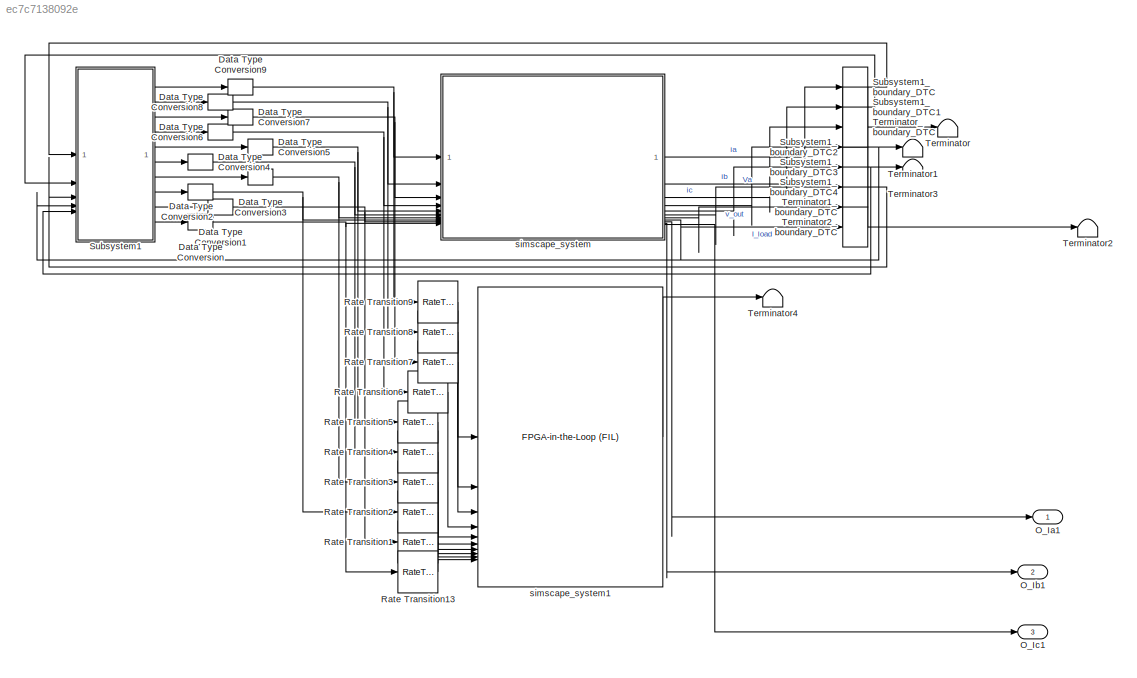
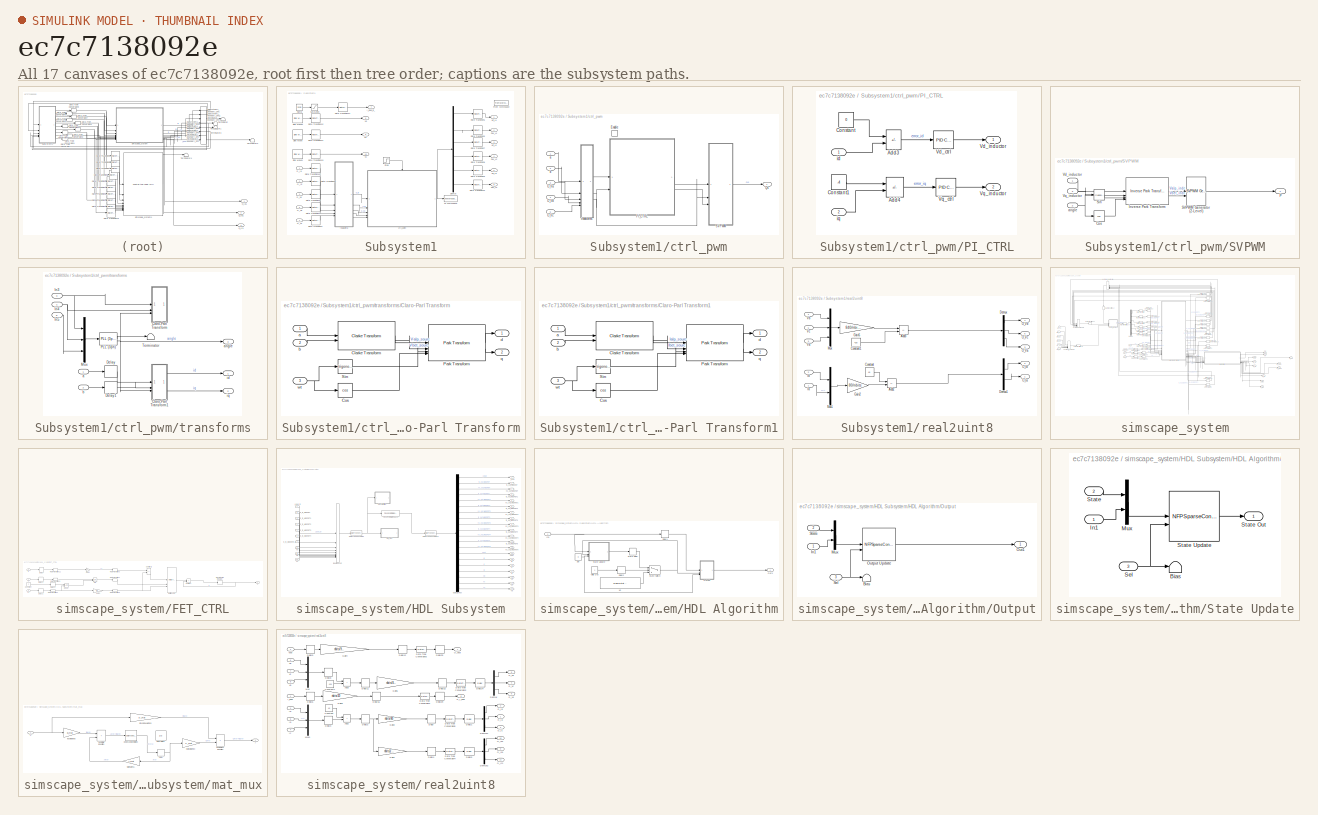
[diagram: thumbnail index - all 17 canvases of the model, root first then tree order]
MODEL slx_ec7c7138092e
KIND model
CONFIG AbsTol = auto
CONFIG EnableMultiTasking = off
CONFIG FixedStep = auto
CONFIG InitFcn = fidelity_pfc_vals;\nload('<userpath>\Desktop\hil\pfc3ph\matlab\sim\sschdl\pfc_desktop\stateSpaceParameters.mat');\nnbits=(2^12)-2;\nnbits1=(2^11)-2;\nA_mat = fi(stateSpaceParameters_1.Ad,1,25,24);\nB_mat = fi(stateSpaceParameters_1.Bd,1,25,31);\nC_mat = fi(stateSpaceParameters_1.Cd,1,25,20);\nD_mat = fi(stateSpaceParameters_1.Dd,1,25,19);\nX0_mat= fi(stateSpaceParameters_1.X0,1,25,14);\n
CONFIG MaxStep = auto
CONFIG MinStep = auto
CONFIG RelTol = 1e-3
CONFIG SampleTimeConstraint = Unconstrained
CONFIG SolverName = VariableStepAuto
CONFIG StartTime = 0.0
CONFIG StopTime = 10.0
BLOCK [DataTypeConversion] Data Type Conversion
  OutDataTypeStr = fixdt(1,18,8)
  RndMeth = Floor
  SaturateOnIntegerOverflow = off
BLOCK [DataTypeConversion] Data Type Conversion1
  OutDataTypeStr = fixdt(1,18,8)
  RndMeth = Floor
  SaturateOnIntegerOverflow = off
BLOCK [DataTypeConversion] Data Type Conversion2
  OutDataTypeStr = fixdt(1,18,8)
  RndMeth = Floor
  SaturateOnIntegerOverflow = off
BLOCK [DataTypeConversion] Data Type Conversion3
  OutDataTypeStr = fixdt(1,18,8)
  RndMeth = Floor
  SaturateOnIntegerOverflow = off
BLOCK [DataTypeConversion] Data Type Conversion4
  OutDataTypeStr = boolean
  RndMeth = Floor
  SaturateOnIntegerOverflow = off
BLOCK [DataTypeConversion] Data Type Conversion5
  OutDataTypeStr = boolean
  RndMeth = Floor
  SaturateOnIntegerOverflow = off
BLOCK [DataTypeConversion] Data Type Conversion6
  OutDataTypeStr = boolean
  RndMeth = Floor
  SaturateOnIntegerOverflow = off
BLOCK [DataTypeConversion] Data Type Conversion7
  OutDataTypeStr = boolean
  RndMeth = Floor
  SaturateOnIntegerOverflow = off
BLOCK [DataTypeConversion] Data Type Conversion8
  OutDataTypeStr = boolean
  RndMeth = Floor
  SaturateOnIntegerOverflow = off
BLOCK [DataTypeConversion] Data Type Conversion9
  OutDataTypeStr = boolean
  RndMeth = Floor
  SaturateOnIntegerOverflow = off
BLOCK [Outport] O_Ia1
BLOCK [Outport] O_Ib1
  Port = 2
BLOCK [Outport] O_Ic1
  Port = 3
BLOCK [RateTransition] Rate Transition1
BLOCK [RateTransition] Rate Transition13
BLOCK [RateTransition] Rate Transition2
BLOCK [RateTransition] Rate Transition3
BLOCK [RateTransition] Rate Transition4
BLOCK [RateTransition] Rate Transition5
BLOCK [RateTransition] Rate Transition6
BLOCK [RateTransition] Rate Transition7
BLOCK [RateTransition] Rate Transition8
BLOCK [RateTransition] Rate Transition9
BLOCK [SubSystem] Subsystem1
BLOCK [Outport] Subsystem1/DW_L1
  Port = 2
BLOCK [Outport] Subsystem1/DW_L2
  Port = 4
BLOCK [Outport] Subsystem1/DW_L3
  Port = 6
BLOCK [Demux] Subsystem1/Demux
  Outputs = 6
BLOCK [FromWorkspace] Subsystem1/From Workspace
  Commented = on
  Interpolate = off
  OutputAfterFinalValue = Holding final value
  SampleTime = t_ss
  VariableName = pwm
  ZeroCross = off
BLOCK [Outport] Subsystem1/I_load_in_
  Port = 7
BLOCK [Inport] Subsystem1/O_Ia
BLOCK [Inport] Subsystem1/O_Ib
  Port = 2
BLOCK [Inport] Subsystem1/O_Va
  Port = 3
BLOCK [Inport] Subsystem1/O_Vb
  Port = 5
BLOCK [Inport] Subsystem1/O_Vc
  Port = 4
BLOCK [Reference] Subsystem1/Ramp  REF=simulink/Sources/Ramp
  SourceBlock = simulink/Sources/Ramp
  SourceType = Ramp
BLOCK [RateTransition] Subsystem1/Rate Transition1
BLOCK [RateTransition] Subsystem1/Rate Transition10
BLOCK [RateTransition] Subsystem1/Rate Transition11
BLOCK [RateTransition] Subsystem1/Rate Transition12
BLOCK [RateTransition] Subsystem1/Rate Transition13
BLOCK [RateTransition] Subsystem1/Rate Transition14
  OutPortSampleTime = t_ss
BLOCK [RateTransition] Subsystem1/Rate Transition15
BLOCK [RateTransition] Subsystem1/Rate Transition2
BLOCK [RateTransition] Subsystem1/Rate Transition3
BLOCK [RateTransition] Subsystem1/Rate Transition4
BLOCK [RateTransition] Subsystem1/Rate Transition5
BLOCK [RateTransition] Subsystem1/Rate Transition6
BLOCK [RateTransition] Subsystem1/Rate Transition7
BLOCK [RateTransition] Subsystem1/Rate Transition8
BLOCK [RateTransition] Subsystem1/Rate Transition9
BLOCK [Saturate] Subsystem1/Saturation
  Commented = on
  UpperLimit = 2
BLOCK [Reference] Subsystem1/Sine Wave  REF=dspsrcs4/Sine Wave
  LibrarySourceBlock = dsphdlsupportsrcs/Sine Wave
  SourceBlock = dspsrcs4/Sine Wave
  SourceType = Sine Wave
BLOCK [Reference] Subsystem1/Sine Wave1  REF=dspsrcs4/Sine Wave
  LibrarySourceBlock = dsphdlsupportsrcs/Sine Wave
  SourceBlock = dspsrcs4/Sine Wave
  SourceType = Sine Wave
BLOCK [Reference] Subsystem1/Sine Wave2  REF=dspsrcs4/Sine Wave
  LibrarySourceBlock = dsphdlsupportsrcs/Sine Wave
  SourceBlock = dspsrcs4/Sine Wave
  SourceType = Sine Wave
BLOCK [Step] Subsystem1/Step
  Commented = on
  SampleTime = 0
  Time = 2/50
BLOCK [ToWorkspace] Subsystem1/To Workspace
  Commented = on
  FixptAsFi = on
  MaxDataPoints = inf
  SampleTime = -1
  SaveFormat = Timeseries
  VariableName = pwm
BLOCK [Outport] Subsystem1/UP_L1
BLOCK [Outport] Subsystem1/UP_L2
  Port = 3
BLOCK [Outport] Subsystem1/UP_L3
  Port = 5
BLOCK [SubSystem] Subsystem1/ctrl_pwm
BLOCK [EnablePort] Subsystem1/ctrl_pwm/Enable
BLOCK [Inport] Subsystem1/ctrl_pwm/O_Va
  Port = 3
BLOCK [Inport] Subsystem1/ctrl_pwm/O_Vb
  Port = 4
BLOCK [Inport] Subsystem1/ctrl_pwm/O_Vc
  Port = 5
BLOCK [SubSystem] Subsystem1/ctrl_pwm/PI_CTRL
BLOCK [Sum] Subsystem1/ctrl_pwm/PI_CTRL/Add3
  IconShape = rectangular
  Inputs = +-
BLOCK [Sum] Subsystem1/ctrl_pwm/PI_CTRL/Add4
  IconShape = rectangular
  Inputs = +-
BLOCK [Constant] Subsystem1/ctrl_pwm/PI_CTRL/Constant
  SampleTime = t_ss
  Value = 0
BLOCK [Constant] Subsystem1/ctrl_pwm/PI_CTRL/Constant1
  SampleTime = t_ss
  Value = -4
BLOCK [Reference] Subsystem1/ctrl_pwm/PI_CTRL/Vd_ctrl  REF=slpidlib/PID Controller
  SourceBlock = slpidlib/PID Controller
  SourceType = PID 1dof
BLOCK [Outport] Subsystem1/ctrl_pwm/PI_CTRL/Vd_inductor
BLOCK [Reference] Subsystem1/ctrl_pwm/PI_CTRL/Vq_ctrl  REF=slpidlib/PID Controller
  SourceBlock = slpidlib/PID Controller
  SourceType = PID 1dof
BLOCK [Outport] Subsystem1/ctrl_pwm/PI_CTRL/Vq_inductor
  Port = 2
BLOCK [Inport] Subsystem1/ctrl_pwm/PI_CTRL/id
BLOCK [Inport] Subsystem1/ctrl_pwm/PI_CTRL/iq
  Port = 2
BLOCK [Outport] Subsystem1/ctrl_pwm/Qs
BLOCK [SubSystem] Subsystem1/ctrl_pwm/SVPWM
BLOCK [Trigonometry] Subsystem1/ctrl_pwm/SVPWM/Cos
  Operator = cos
BLOCK [Reference] Subsystem1/ctrl_pwm/SVPWM/Inverse Park Transform  REF=mcbcontrolslib/Inverse Park Transform
  SourceBlock = mcbcontrolslib/Inverse Park Transform
  SourceType = Inverse Park Transform
BLOCK [Outport] Subsystem1/ctrl_pwm/SVPWM/P
BLOCK [Reference] Subsystem1/ctrl_pwm/SVPWM/SVPWM Generator (2-Level)  REF=spsSVPWMGenerator2LevelLib/SVPWM Generator
(2-Level)
  SourceBlock = spsSVPWMGenerator2LevelLib/SVPWM Generator\n(2-Level)
  SourceType = SVPWM Generator (2-Level)
BLOCK [Trigonometry] Subsystem1/ctrl_pwm/SVPWM/Sin
BLOCK [Inport] Subsystem1/ctrl_pwm/SVPWM/Vd_inductor
BLOCK [Inport] Subsystem1/ctrl_pwm/SVPWM/Vq_inductor
  Port = 3
BLOCK [Inport] Subsystem1/ctrl_pwm/SVPWM/angle
  Port = 2
BLOCK [Inport] Subsystem1/ctrl_pwm/a
BLOCK [Inport] Subsystem1/ctrl_pwm/b
  Port = 2
BLOCK [SubSystem] Subsystem1/ctrl_pwm/transforms
BLOCK [SubSystem] Subsystem1/ctrl_pwm/transforms/Claro-Parl Transform
  Commented = on
BLOCK [Reference] Subsystem1/ctrl_pwm/transforms/Claro-Parl Transform/Clarke Transform  REF=mcbcontrolslib/Clarke Transform
  SourceBlock = mcbcontrolslib/Clarke Transform
  SourceType = Clarke Transform
BLOCK [Trigonometry] Subsystem1/ctrl_pwm/transforms/Claro-Parl Transform/Cos
  Operator = cos
BLOCK [Reference] Subsystem1/ctrl_pwm/transforms/Claro-Parl Transform/Park Transform  REF=mcbcontrolslib/Park Transform
  SourceBlock = mcbcontrolslib/Park Transform
  SourceType = Park Transform
BLOCK [Trigonometry] Subsystem1/ctrl_pwm/transforms/Claro-Parl Transform/Sin
BLOCK [Inport] Subsystem1/ctrl_pwm/transforms/Claro-Parl Transform/a
BLOCK [Inport] Subsystem1/ctrl_pwm/transforms/Claro-Parl Transform/b
  Port = 2
BLOCK [Outport] Subsystem1/ctrl_pwm/transforms/Claro-Parl Transform/d
BLOCK [Outport] Subsystem1/ctrl_pwm/transforms/Claro-Parl Transform/q
  Port = 2
BLOCK [Inport] Subsystem1/ctrl_pwm/transforms/Claro-Parl Transform/wt
  Port = 3
BLOCK [SubSystem] Subsystem1/ctrl_pwm/transforms/Claro-Parl Transform1
BLOCK [Reference] Subsystem1/ctrl_pwm/transforms/Claro-Parl Transform1/Clarke Transform  REF=mcbcontrolslib/Clarke Transform
  SourceBlock = mcbcontrolslib/Clarke Transform
  SourceType = Clarke Transform
BLOCK [Trigonometry] Subsystem1/ctrl_pwm/transforms/Claro-Parl Transform1/Cos
  Operator = cos
BLOCK [Reference] Subsystem1/ctrl_pwm/transforms/Claro-Parl Transform1/Park Transform  REF=mcbcontrolslib/Park Transform
  SourceBlock = mcbcontrolslib/Park Transform
  SourceType = Park Transform
BLOCK [Trigonometry] Subsystem1/ctrl_pwm/transforms/Claro-Parl Transform1/Sin
BLOCK [Inport] Subsystem1/ctrl_pwm/transforms/Claro-Parl Transform1/a
BLOCK [Inport] Subsystem1/ctrl_pwm/transforms/Claro-Parl Transform1/b
  Port = 2
BLOCK [Outport] Subsystem1/ctrl_pwm/transforms/Claro-Parl Transform1/d
BLOCK [Outport] Subsystem1/ctrl_pwm/transforms/Claro-Parl Transform1/q
  Port = 2
BLOCK [Inport] Subsystem1/ctrl_pwm/transforms/Claro-Parl Transform1/wt
  Port = 3
BLOCK [Delay] Subsystem1/ctrl_pwm/transforms/Delay
  DelayLength = 1
  InputPortMap = u0
BLOCK [Delay] Subsystem1/ctrl_pwm/transforms/Delay1
  DelayLength = 1
  InputPortMap = u0
BLOCK [Inport] Subsystem1/ctrl_pwm/transforms/In3
  Port = 3
BLOCK [Inport] Subsystem1/ctrl_pwm/transforms/In4
  Port = 4
BLOCK [Inport] Subsystem1/ctrl_pwm/transforms/In5
  Port = 5
BLOCK [Mux] Subsystem1/ctrl_pwm/transforms/Mux
  DisplayOption = bar
  Inputs = 3
BLOCK [Reference] Subsystem1/ctrl_pwm/transforms/PLL (3ph)  REF=spsPLL3phLib/PLL
(3ph)
  SourceBlock = spsPLL3phLib/PLL\n(3ph)
  SourceType = PLL (3ph)
BLOCK [Terminator] Subsystem1/ctrl_pwm/transforms/Terminator
BLOCK [Inport] Subsystem1/ctrl_pwm/transforms/a
BLOCK [Outport] Subsystem1/ctrl_pwm/transforms/angle
  Port = 3
BLOCK [Inport] Subsystem1/ctrl_pwm/transforms/b
  Port = 2
BLOCK [Outport] Subsystem1/ctrl_pwm/transforms/id
BLOCK [Outport] Subsystem1/ctrl_pwm/transforms/iq
  Port = 2
BLOCK [SubSystem] Subsystem1/real2uint8
BLOCK [Sum] Subsystem1/real2uint8/Add2
  IconShape = rectangular
  Inputs = -+
  OutDataTypeStr = Inherit: Same as first input
BLOCK [Sum] Subsystem1/real2uint8/Add3
  IconShape = rectangular
  Inputs = +-
BLOCK [Constant] Subsystem1/real2uint8/Constant
  SampleTime = -1
  Value = 40
BLOCK [Constant] Subsystem1/real2uint8/Constant1
  SampleTime = -1
  Value = 420
BLOCK [Demux] Subsystem1/real2uint8/Demux
  Outputs = 3
BLOCK [Demux] Subsystem1/real2uint8/Demux1
  Outputs = 2
BLOCK [Gain] Subsystem1/real2uint8/Gain2
  Gain = 80/nbits
  OutDataTypeStr = Inherit: Same as input
BLOCK [Gain] Subsystem1/real2uint8/Gain5
  Gain = 840/nbits
  OutDataTypeStr = Inherit: Same as input
BLOCK [Inport] Subsystem1/real2uint8/Ia
BLOCK [Inport] Subsystem1/real2uint8/Ib
  Port = 2
BLOCK [Mux] Subsystem1/real2uint8/Mux
  DisplayOption = bar
  Inputs = 3
BLOCK [Mux] Subsystem1/real2uint8/Mux1
  DisplayOption = bar
  Inputs = 2
BLOCK [Outport] Subsystem1/real2uint8/O_Ia
BLOCK [Outport] Subsystem1/real2uint8/O_Ib
  Port = 2
BLOCK [Outport] Subsystem1/real2uint8/O_Va
  Port = 3
BLOCK [Outport] Subsystem1/real2uint8/O_Vb
  Port = 4
BLOCK [Outport] Subsystem1/real2uint8/O_Vc
  Port = 5
BLOCK [Inport] Subsystem1/real2uint8/Va
  Port = 3
BLOCK [Inport] Subsystem1/real2uint8/Vb
  Port = 4
BLOCK [Inport] Subsystem1/real2uint8/Vc
  Port = 5
BLOCK [Outport] Subsystem1/va
  Port = 8
BLOCK [Outport] Subsystem1/vb
  Port = 9
BLOCK [Outport] Subsystem1/vc
  Port = 10
BLOCK [DataTypeConversion] Subsystem1_boundary_DTC
BLOCK [DataTypeConversion] Subsystem1_boundary_DTC1
BLOCK [DataTypeConversion] Subsystem1_boundary_DTC2
BLOCK [DataTypeConversion] Subsystem1_boundary_DTC3
BLOCK [DataTypeConversion] Subsystem1_boundary_DTC4
BLOCK [Terminator] Terminator
BLOCK [Terminator] Terminator1
BLOCK [DataTypeConversion] Terminator1_boundary_DTC
BLOCK [Terminator] Terminator2
BLOCK [DataTypeConversion] Terminator2_boundary_DTC
BLOCK [Terminator] Terminator3
BLOCK [Terminator] Terminator4
BLOCK [DataTypeConversion] Terminator_boundary_DTC
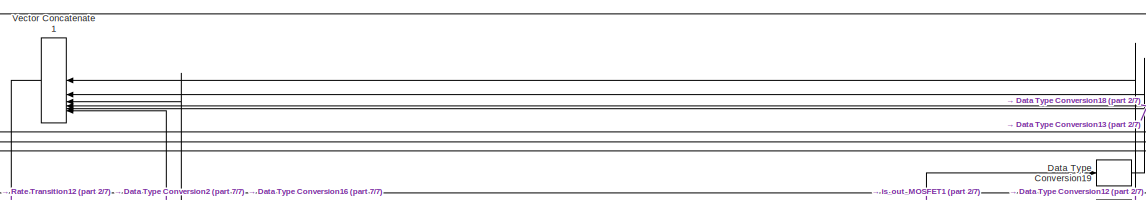
[diagram: simscape_system - part 1/7, top center region]
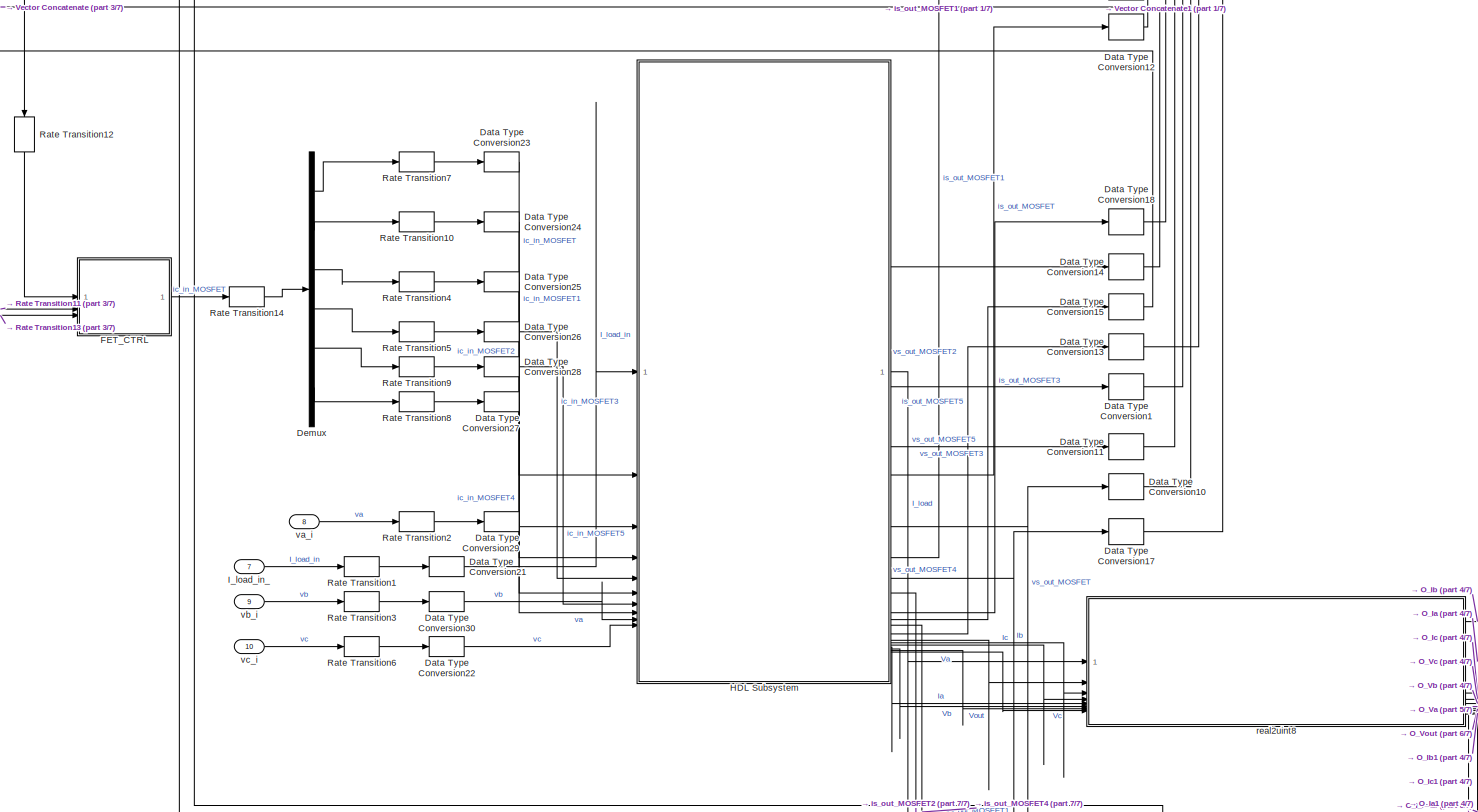
[diagram: simscape_system - part 2/7, central region]
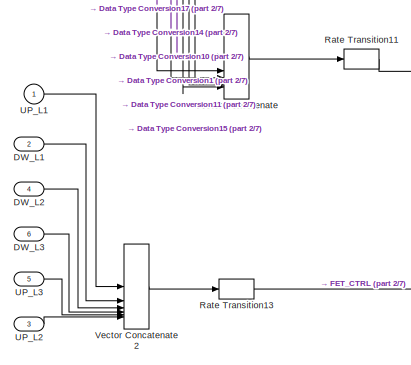
[diagram: simscape_system - part 3/7, middle left region]
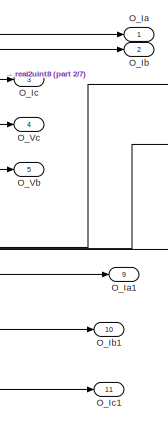
[diagram: simscape_system - part 4/7, middle right region]
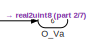
[diagram: simscape_system - part 5/7, middle right region]
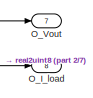
[diagram: simscape_system - part 6/7, middle right region]
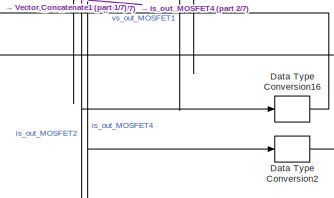
[diagram: simscape_system - part 7/7, bottom center region]
BLOCK [SubSystem] simscape_system
BLOCK [Inport] simscape_system/DW_L1
  Port = 2
BLOCK [Inport] simscape_system/DW_L2
  Port = 4
BLOCK [Inport] simscape_system/DW_L3
  Port = 6
BLOCK [DataTypeConversion] simscape_system/Data Type Conversion1
  Commented = through
  LockScale = on
  RndMeth = Nearest
  SaturateOnIntegerOverflow = off
BLOCK [DataTypeConversion] simscape_system/Data Type Conversion10
  Commented = through
  LockScale = on
  RndMeth = Nearest
  SaturateOnIntegerOverflow = off
BLOCK [DataTypeConversion] simscape_system/Data Type Conversion11
  Commented = through
  LockScale = on
  RndMeth = Nearest
  SaturateOnIntegerOverflow = off
BLOCK [DataTypeConversion] simscape_system/Data Type Conversion12
  Commented = through
  LockScale = on
  RndMeth = Nearest
  SaturateOnIntegerOverflow = off
BLOCK [DataTypeConversion] simscape_system/Data Type Conversion13
  Commented = through
  LockScale = on
  RndMeth = Nearest
  SaturateOnIntegerOverflow = off
BLOCK [DataTypeConversion] simscape_system/Data Type Conversion14
  Commented = through
  LockScale = on
  RndMeth = Nearest
  SaturateOnIntegerOverflow = off
BLOCK [DataTypeConversion] simscape_system/Data Type Conversion15
  Commented = through
  LockScale = on
  RndMeth = Nearest
  SaturateOnIntegerOverflow = off
BLOCK [DataTypeConversion] simscape_system/Data Type Conversion16
  Commented = through
  LockScale = on
  RndMeth = Nearest
  SaturateOnIntegerOverflow = off
BLOCK [DataTypeConversion] simscape_system/Data Type Conversion17
  Commented = through
  LockScale = on
  RndMeth = Nearest
  SaturateOnIntegerOverflow = off
BLOCK [DataTypeConversion] simscape_system/Data Type Conversion18
  Commented = through
  LockScale = on
  RndMeth = Nearest
  SaturateOnIntegerOverflow = off
BLOCK [DataTypeConversion] simscape_system/Data Type Conversion19
  Commented = through
  LockScale = on
  RndMeth = Nearest
  SaturateOnIntegerOverflow = off
BLOCK [DataTypeConversion] simscape_system/Data Type Conversion2
  Commented = through
  LockScale = on
  RndMeth = Nearest
  SaturateOnIntegerOverflow = off
BLOCK [DataTypeConversion] simscape_system/Data Type Conversion21
  Commented = through
  OutDataTypeStr = single
  RndMeth = Nearest
  SaturateOnIntegerOverflow = off
BLOCK [DataTypeConversion] simscape_system/Data Type Conversion22
  Commented = through
  OutDataTypeStr = single
  RndMeth = Nearest
  SaturateOnIntegerOverflow = off
BLOCK [DataTypeConversion] simscape_system/Data Type Conversion23
  Commented = through
  OutDataTypeStr = single
  RndMeth = Nearest
  SaturateOnIntegerOverflow = off
BLOCK [DataTypeConversion] simscape_system/Data Type Conversion24
  Commented = through
  OutDataTypeStr = single
  RndMeth = Nearest
  SaturateOnIntegerOverflow = off
BLOCK [DataTypeConversion] simscape_system/Data Type Conversion25
  Commented = through
  OutDataTypeStr = single
  RndMeth = Nearest
  SaturateOnIntegerOverflow = off
BLOCK [DataTypeConversion] simscape_system/Data Type Conversion26
  Commented = through
  OutDataTypeStr = single
  RndMeth = Nearest
  SaturateOnIntegerOverflow = off
BLOCK [DataTypeConversion] simscape_system/Data Type Conversion27
  Commented = through
  OutDataTypeStr = single
  RndMeth = Nearest
  SaturateOnIntegerOverflow = off
BLOCK [DataTypeConversion] simscape_system/Data Type Conversion28
  Commented = through
  OutDataTypeStr = single
  RndMeth = Nearest
  SaturateOnIntegerOverflow = off
BLOCK [DataTypeConversion] simscape_system/Data Type Conversion29
  Commented = through
  OutDataTypeStr = single
  RndMeth = Nearest
  SaturateOnIntegerOverflow = off
BLOCK [DataTypeConversion] simscape_system/Data Type Conversion30
  Commented = through
  OutDataTypeStr = single
  RndMeth = Nearest
  SaturateOnIntegerOverflow = off
BLOCK [Demux] simscape_system/Demux
  Outputs = 6
BLOCK [SubSystem] simscape_system/FET_CTRL
BLOCK [Constant] simscape_system/FET_CTRL/Constant
  OutDataTypeStr = fixdt(1,18,17)
  SampleTime = t_ss
  Value = -.7
BLOCK [Delay] simscape_system/FET_CTRL/Delay
  Commented = through
  DelayLength = 1
  InputPortMap = u0
  InputProcessing = Columns as channels (frame based)
  SampleTime = t_ss
BLOCK [Delay] simscape_system/FET_CTRL/Delay1
  Commented = through
  DelayLength = 1
  InputPortMap = u0
  InputProcessing = Columns as channels (frame based)
  SampleTime = t_ss
BLOCK [Delay] simscape_system/FET_CTRL/Delay2
  Commented = through
  DelayLength = 1
  InputPortMap = u0
  InputProcessing = Columns as channels (frame based)
  SampleTime = t_ss
BLOCK [Delay] simscape_system/FET_CTRL/Delay3
  Commented = through
  DelayLength = 1
  InitialCondition = -.7
  InputPortMap = u0
  InputProcessing = Columns as channels (frame based)
  SampleTime = t_ss
BLOCK [DiscreteIntegrator] simscape_system/FET_CTRL/Discrete-Time Integrator
  ICPrevOutput = DiscIntNeverNeededParam
  ICPrevScaledInput = DiscIntNeverNeededParam
  InitialConditionSetting = Auto
  IntegratorMethod = Accumulation: Forward Euler
  LimitOutput = on
  LowerSaturationLimit = -100
  OutDataTypeStr = fixdt(1,18,8)
  SampleTime = t_ss
  SaturateOnIntegerOverflow = on
  UpperSaturationLimit = 100
  gainval = 1/s
BLOCK [RelationalOperator] simscape_system/FET_CTRL/Equal
  InputSameDT = off
  OutDataTypeStr = boolean
  RndMeth = Simplest
BLOCK [Inport] simscape_system/FET_CTRL/G
  Port = 3
  SampleTime = t_ss
BLOCK [Gain] simscape_system/FET_CTRL/Gain1
  Gain = -1
  OutDataTypeStr = fixdt(1,18,12)
BLOCK [Gain] simscape_system/FET_CTRL/Gain3
  Gain = Gs
  OutDataTypeStr = fixdt(1,18,12)
BLOCK [Reference] simscape_system/FET_CTRL/Multiply-Add  REF=hdlsllib/HDL Operations/Multiply-Add
  SourceBlock = hdlsllib/HDL Operations/Multiply-Add
  SourceType = Multiply-Add
BLOCK [Logic] simscape_system/FET_CTRL/OR
  AllPortsSameDT = off
  IconShape = distinctive
  Operator = OR
  OutDataTypeStr = boolean
BLOCK [RateTransition] simscape_system/FET_CTRL/Rate Transition1
  Commented = through
  OutPortSampleTime = t_ss
BLOCK [RateTransition] simscape_system/FET_CTRL/Rate Transition11
  Commented = through
  OutPortSampleTime = t_ss
BLOCK [RateTransition] simscape_system/FET_CTRL/Rate Transition2
  Commented = through
  OutPortSampleTime = t_ss
BLOCK [RateTransition] simscape_system/FET_CTRL/Rate Transition3
  Commented = through
  OutPortSampleTime = t_ss
BLOCK [RateTransition] simscape_system/FET_CTRL/Rate Transition4
  Commented = through
  OutPortSampleTime = t_ss
BLOCK [RateTransition] simscape_system/FET_CTRL/Rate Transition5
  Commented = through
  OutPortSampleTime = t_ss
BLOCK [Sum] simscape_system/FET_CTRL/Subtract
  IconShape = rectangular
  Inputs = +-
  OutDataTypeStr = fixdt(1,18,12)
BLOCK [Sum] simscape_system/FET_CTRL/Subtract1
  IconShape = rectangular
  Inputs = +-
  OutDataTypeStr = fixdt(1,18,11)
BLOCK [Outport] simscape_system/FET_CTRL/ic
  SampleTime = t_ss
BLOCK [Inport] simscape_system/FET_CTRL/is
  NameLocation = top
  OutDataTypeStr = fixdt(1,18,6)
  SampleTime = t_ss
BLOCK [Inport] simscape_system/FET_CTRL/vs
  OutDataTypeStr = fixdt(1,18,6)
  Port = 2
  SampleTime = t_ss
BLOCK [SubSystem] simscape_system/HDL Subsystem
BLOCK [DataTypeConversion] simscape_system/HDL Subsystem/Data Type Conversion
  OutDataTypeStr = fixdt(1,25,13)
  RndMeth = Floor
  SaturateOnIntegerOverflow = off
BLOCK [DataTypeConversion] simscape_system/HDL Subsystem/Data Type Conversion1
  OutDataTypeStr = fixdt(1,18,6)
  RndMeth = Floor
  SaturateOnIntegerOverflow = off
BLOCK [Reference] simscape_system/HDL Subsystem/Fixed-Point State-Space  REF=simulink/Additional Math
& Discrete/Additional
Discrete/Fixed-Point
State-Space
  SourceBlock = simulink/Additional Math\n& Discrete/Additional\nDiscrete/Fixed-Point\nState-Space
  SourceType = Fixed-Point State-Space
BLOCK [SubSystem] simscape_system/HDL Subsystem/HDL Algorithm
  Commented = on
BLOCK [Delay] simscape_system/HDL Subsystem/HDL Algorithm/Delay1
  DelayLength = 1
  InputPortMap = u0
BLOCK [Delay] simscape_system/HDL Subsystem/HDL Algorithm/Delay2
  InputPortMap = u0
BLOCK [Inport] simscape_system/HDL Subsystem/HDL Algorithm/In1
BLOCK [Outport] simscape_system/HDL Subsystem/HDL Algorithm/Out1
  VectorParamsAs1DForOutWhenUnconnected = off
BLOCK [SubSystem] simscape_system/HDL Subsystem/HDL Algorithm/Output
BLOCK [Terminator] simscape_system/HDL Subsystem/HDL Algorithm/Output/Bias
BLOCK [Inport] simscape_system/HDL Subsystem/HDL Algorithm/Output/In1
BLOCK [Mux] simscape_system/HDL Subsystem/HDL Algorithm/Output/Mux
  DisplayOption = bar
  Inputs = 2
BLOCK [Outport] simscape_system/HDL Subsystem/HDL Algorithm/Output/Out1
  VectorParamsAs1DForOutWhenUnconnected = off
BLOCK [Reference] simscape_system/HDL Subsystem/HDL Algorithm/Output/Output Update  REF=hdlssclib/NFPSparseConstMultiply
  SourceBlock = hdlssclib/NFPSparseConstMultiply
BLOCK [Inport] simscape_system/HDL Subsystem/HDL Algorithm/Output/Sel
  LockScale = on
  Port = 3
BLOCK [Inport] simscape_system/HDL Subsystem/HDL Algorithm/Output/State
  Port = 2
BLOCK [Constant] simscape_system/HDL Subsystem/HDL Algorithm/Sel
  OutDataTypeStr = uint32
  SampleTime = -1
  Value = 0
BLOCK [Delay] simscape_system/HDL Subsystem/HDL Algorithm/State Delay
  DelayLength = 1
  InitialCondition = single(stateSpaceParameters_1.X0)
  InputPortMap = u0
BLOCK [Switch] simscape_system/HDL Subsystem/HDL Algorithm/State Switch
  Criteria = u2 ~= 0
  InputSameDT = off
  SaturateOnIntegerOverflow = off
BLOCK [SubSystem] simscape_system/HDL Subsystem/HDL Algorithm/State Update
BLOCK [Terminator] simscape_system/HDL Subsystem/HDL Algorithm/State Update/Bias
BLOCK [Inport] simscape_system/HDL Subsystem/HDL Algorithm/State Update/In1
BLOCK [Mux] simscape_system/HDL Subsystem/HDL Algorithm/State Update/Mux
  DisplayOption = bar
  Inputs = 2
BLOCK [Inport] simscape_system/HDL Subsystem/HDL Algorithm/State Update/Sel
  LockScale = on
  Port = 3
BLOCK [Inport] simscape_system/HDL Subsystem/HDL Algorithm/State Update/State
  Port = 2
BLOCK [Outport] simscape_system/HDL Subsystem/HDL Algorithm/State Update/State Out
  VectorParamsAs1DForOutWhenUnconnected = off
BLOCK [Reference] simscape_system/HDL Subsystem/HDL Algorithm/State Update/State Update  REF=hdlssclib/NFPSparseConstMultiply
  SourceBlock = hdlssclib/NFPSparseConstMultiply
BLOCK [Constant] simscape_system/HDL Subsystem/HDL Algorithm/Valid Out
  OutDataTypeStr = boolean
  SampleTime = 4.395604395604395e-07
BLOCK [Constant] simscape_system/HDL Subsystem/HDL Algorithm/X0
  SampleTime = 4.395604395604395e-07
  Value = single(stateSpaceParameters_1.X0)
BLOCK [Outport] simscape_system/HDL Subsystem/I_load
BLOCK [Inport] simscape_system/HDL Subsystem/I_load_in
  OutDataTypeStr = fixdt(1,18,8)
BLOCK [Outport] simscape_system/HDL Subsystem/Ia
  Port = 17
BLOCK [Outport] simscape_system/HDL Subsystem/Ib
  Port = 15
BLOCK [Outport] simscape_system/HDL Subsystem/Ic
  Port = 16
BLOCK [Concatenate] simscape_system/HDL Subsystem/Input Concat
  NumInputs = 10
BLOCK [Demux] simscape_system/HDL Subsystem/Output Demux
  Outputs = 20
BLOCK [Outport] simscape_system/HDL Subsystem/Va
  Port = 20
BLOCK [Outport] simscape_system/HDL Subsystem/Vb
  Port = 18
BLOCK [Outport] simscape_system/HDL Subsystem/Vc
  Port = 19
BLOCK [Outport] simscape_system/HDL Subsystem/Vout
  Port = 14
BLOCK [Inport] simscape_system/HDL Subsystem/ic_in_MOSFET
  OutDataTypeStr = fixdt(1,18,8)
  Port = 2
BLOCK [Inport] simscape_system/HDL Subsystem/ic_in_MOSFET1
  OutDataTypeStr = fixdt(1,18,8)
  Port = 3
BLOCK [Inport] simscape_system/HDL Subsystem/ic_in_MOSFET2
  OutDataTypeStr = fixdt(1,18,8)
  Port = 4
BLOCK [Inport] simscape_system/HDL Subsystem/ic_in_MOSFET3
  OutDataTypeStr = fixdt(1,18,8)
  Port = 5
BLOCK [Inport] simscape_system/HDL Subsystem/ic_in_MOSFET4
  OutDataTypeStr = fixdt(1,18,8)
  Port = 6
BLOCK [Inport] simscape_system/HDL Subsystem/ic_in_MOSFET5
  OutDataTypeStr = fixdt(1,18,8)
  Port = 7
BLOCK [Outport] simscape_system/HDL Subsystem/is_out_MOSFET
  Port = 2
BLOCK [Outport] simscape_system/HDL Subsystem/is_out_MOSFET1
  Port = 4
BLOCK [Outport] simscape_system/HDL Subsystem/is_out_MOSFET2
  Port = 6
BLOCK [Outport] simscape_system/HDL Subsystem/is_out_MOSFET3
  Port = 8
BLOCK [Outport] simscape_system/HDL Subsystem/is_out_MOSFET4
  Port = 10
BLOCK [Outport] simscape_system/HDL Subsystem/is_out_MOSFET5
  Port = 12
BLOCK [SubSystem] simscape_system/HDL Subsystem/mat_mux
  Commented = on
BLOCK [Delay] simscape_system/HDL Subsystem/mat_mux/Delay
  DelayLength = 1
  InitialCondition = X0_mat
  InputPortMap = u0
BLOCK [UnitDelay] simscape_system/HDL Subsystem/mat_mux/Delay State X
  AttributesFormatString = %<Description>
  Commented = on
  Description = Store in Global RAM
  DisableCoverage = on
  HasFrameUpgradeWarning = on
  InitialCondition = X0_mat
  SampleTime = -1
BLOCK [Gain] simscape_system/HDL Subsystem/mat_mux/Direct Link Matrix D
  AttributesFormatString = %<Description>
  Description = Multiply in CPU
  DisableCoverage = on
  Gain = D_mat
  Multiplication = Matrix(K*u) (u vector)
  OutDataTypeStr = Inherit: Inherit via back propagation
BLOCK [DataTypeConversion] simscape_system/HDL Subsystem/mat_mux/Downcast Next State X
  AttributesFormatString = %<Description>
  Commented = through
  Description = Reduce from CPU Size\n to Global RAM Size
  DisableCoverage = on
  RndMeth = Floor
  SaturateOnIntegerOverflow = off
BLOCK [Gain] simscape_system/HDL Subsystem/mat_mux/Input Matrix B
  AttributesFormatString = %<Description>
  Description = Multiply in CPU
  DisableCoverage = on
  Gain = B_mat
  Multiplication = Matrix(K*u) (u vector)
  OutDataTypeStr = Inherit: Inherit via back propagation
BLOCK [Gain] simscape_system/HDL Subsystem/mat_mux/Output Matrix C
  AttributesFormatString = %<Description>
  Description = Multiply in CPU
  DisableCoverage = on
  Gain = C_mat
  Multiplication = Matrix(K*u) (u vector)
  OutDataTypeStr = Inherit: Inherit via back propagation
BLOCK [Gain] simscape_system/HDL Subsystem/mat_mux/State Matrix A
  AttributesFormatString = %<Description>
  Description = Multiply in CPU
  DisableCoverage = on
  Gain = A_mat
  Multiplication = Matrix(K*u) (u vector)
  OutDataTypeStr = Inherit: Inherit via back propagation
BLOCK [Sum] simscape_system/HDL Subsystem/mat_mux/Sum Output Equation
  AttributesFormatString = %<Description>
  Description = Add in CPU
  DisableCoverage = on
  IconShape = rectangular
  OutDataTypeStr = fixdt(1,25,13)
BLOCK [Sum] simscape_system/HDL Subsystem/mat_mux/Sum State Equation
  AttributesFormatString = %<Description>
  Description = Add in CPU
  DisableCoverage = on
  IconShape = rectangular
  OutDataTypeStr = fixdt(1,25,13)
BLOCK [Inport] simscape_system/HDL Subsystem/mat_mux/u
BLOCK [Outport] simscape_system/HDL Subsystem/mat_mux/y
  InitialOutput = 0
BLOCK [Inport] simscape_system/HDL Subsystem/va
  OutDataTypeStr = fixdt(1,18,8)
  Port = 8
BLOCK [Inport] simscape_system/HDL Subsystem/vb
  OutDataTypeStr = fixdt(1,18,8)
  Port = 9
BLOCK [Inport] simscape_system/HDL Subsystem/vc
  OutDataTypeStr = fixdt(1,18,8)
  Port = 10
BLOCK [Outport] simscape_system/HDL Subsystem/vs_out_MOSFET
  Port = 3
BLOCK [Outport] simscape_system/HDL Subsystem/vs_out_MOSFET1
  Port = 5
BLOCK [Outport] simscape_system/HDL Subsystem/vs_out_MOSFET2
  Port = 7
BLOCK [Outport] simscape_system/HDL Subsystem/vs_out_MOSFET3
  Port = 9
BLOCK [Outport] simscape_system/HDL Subsystem/vs_out_MOSFET4
  Port = 11
BLOCK [Outport] simscape_system/HDL Subsystem/vs_out_MOSFET5
  Port = 13
BLOCK [Inport] simscape_system/I_load_in_
  OutDataTypeStr = fixdt(1,18,8)
  Port = 7
BLOCK [Outport] simscape_system/O_I_load
  Port = 8
BLOCK [Outport] simscape_system/O_Ia
BLOCK [Outport] simscape_system/O_Ia1
  Port = 9
BLOCK [Outport] simscape_system/O_Ib
  Port = 2
BLOCK [Outport] simscape_system/O_Ib1
  Port = 10
BLOCK [Outport] simscape_system/O_Ic
  Port = 3
BLOCK [Outport] simscape_system/O_Ic1
  Port = 11
BLOCK [Outport] simscape_system/O_Va
  Port = 6
BLOCK [Outport] simscape_system/O_Vb
  Port = 5
BLOCK [Outport] simscape_system/O_Vc
  Port = 4
BLOCK [Outport] simscape_system/O_Vout
  Port = 7
BLOCK [RateTransition] simscape_system/Rate Transition1
  OutPortSampleTime = t_ss
BLOCK [RateTransition] simscape_system/Rate Transition10
  Commented = through
  OutPortSampleTime = t_ss
BLOCK [RateTransition] simscape_system/Rate Transition11
  OutPortSampleTime = t_ss
BLOCK [RateTransition] simscape_system/Rate Transition12
  NameLocation = left
  OutPortSampleTime = t_ss
BLOCK [RateTransition] simscape_system/Rate Transition13
  OutPortSampleTime = t_ss
BLOCK [RateTransition] simscape_system/Rate Transition14
  Integrity = off
  OutPortSampleTime = t_ss
BLOCK [RateTransition] simscape_system/Rate Transition2
  OutPortSampleTime = t_ss
BLOCK [RateTransition] simscape_system/Rate Transition3
  OutPortSampleTime = t_ss
BLOCK [RateTransition] simscape_system/Rate Transition4
  Commented = through
  OutPortSampleTime = t_ss
BLOCK [RateTransition] simscape_system/Rate Transition5
  Commented = through
  OutPortSampleTime = t_ss
BLOCK [RateTransition] simscape_system/Rate Transition6
  OutPortSampleTime = t_ss
BLOCK [RateTransition] simscape_system/Rate Transition7
  Commented = through
  OutPortSampleTime = t_ss
BLOCK [RateTransition] simscape_system/Rate Transition8
  Commented = through
  OutPortSampleTime = t_ss
BLOCK [RateTransition] simscape_system/Rate Transition9
  Commented = through
  OutPortSampleTime = t_ss
BLOCK [Inport] simscape_system/UP_L1
BLOCK [Inport] simscape_system/UP_L2
  Port = 3
BLOCK [Inport] simscape_system/UP_L3
  Port = 5
BLOCK [Concatenate] simscape_system/Vector Concatenate
  NumInputs = 6
BLOCK [Concatenate] simscape_system/Vector Concatenate1
  NameLocation = top
  NumInputs = 6
BLOCK [Concatenate] simscape_system/Vector Concatenate2
  NumInputs = 6
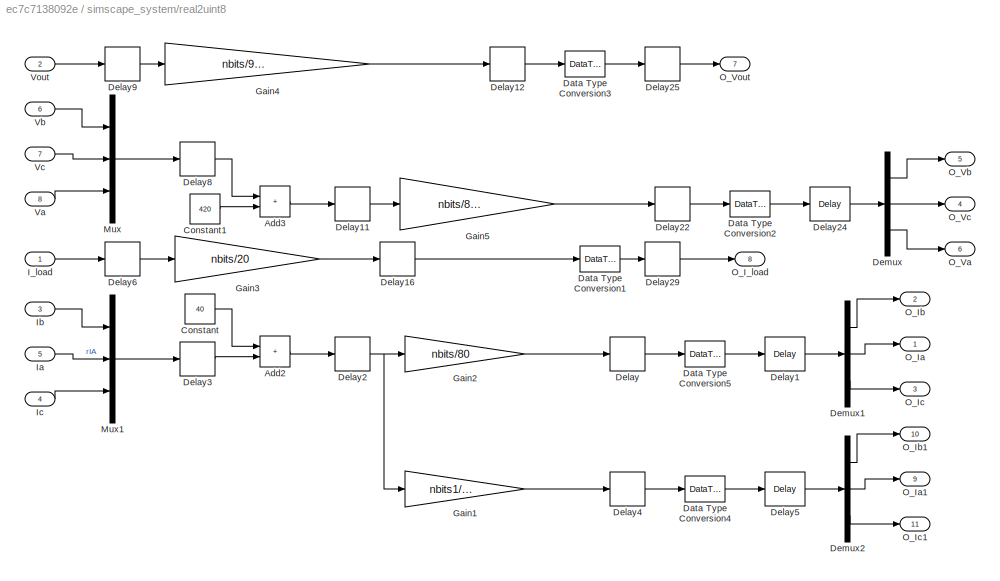
BLOCK [SubSystem] simscape_system/real2uint8
BLOCK [Sum] simscape_system/real2uint8/Add2
  IconShape = rectangular
BLOCK [Sum] simscape_system/real2uint8/Add3
  IconShape = rectangular
BLOCK [Constant] simscape_system/real2uint8/Constant
  OutDataTypeStr = fixdt(1,18,6)
  SampleTime = -1
  Value = 40
BLOCK [Constant] simscape_system/real2uint8/Constant1
  OutDataTypeStr = fixdt(1,18,6)
  SampleTime = -1
  Value = 420
BLOCK [DataTypeConversion] simscape_system/real2uint8/Data Type Conversion1
  LockScale = on
  OutDataTypeStr = uint16
  RndMeth = Floor
  SaturateOnIntegerOverflow = off
BLOCK [DataTypeConversion] simscape_system/real2uint8/Data Type Conversion2
  LockScale = on
  OutDataTypeStr = uint16
  RndMeth = Floor
  SaturateOnIntegerOverflow = off
BLOCK [DataTypeConversion] simscape_system/real2uint8/Data Type Conversion3
  LockScale = on
  OutDataTypeStr = uint16
  RndMeth = Floor
  SaturateOnIntegerOverflow = off
BLOCK [DataTypeConversion] simscape_system/real2uint8/Data Type Conversion4
  LockScale = on
  OutDataTypeStr = uint16
  RndMeth = Floor
  SaturateOnIntegerOverflow = off
BLOCK [DataTypeConversion] simscape_system/real2uint8/Data Type Conversion5
  LockScale = on
  OutDataTypeStr = uint16
  RndMeth = Floor
  SaturateOnIntegerOverflow = off
BLOCK [Delay] simscape_system/real2uint8/Delay
  InputPortMap = u0
BLOCK [Delay] simscape_system/real2uint8/Delay1
  InputPortMap = u0
BLOCK [Delay] simscape_system/real2uint8/Delay11
  InputPortMap = u0
BLOCK [Delay] simscape_system/real2uint8/Delay12
  InputPortMap = u0
BLOCK [Delay] simscape_system/real2uint8/Delay16
  InputPortMap = u0
BLOCK [Delay] simscape_system/real2uint8/Delay2
  InputPortMap = u0
BLOCK [Delay] simscape_system/real2uint8/Delay22
  InputPortMap = u0
BLOCK [Delay] simscape_system/real2uint8/Delay24
  InputPortMap = u0
BLOCK [Delay] simscape_system/real2uint8/Delay25
  InputPortMap = u0
BLOCK [Delay] simscape_system/real2uint8/Delay29
  InputPortMap = u0
BLOCK [Delay] simscape_system/real2uint8/Delay3
  InputPortMap = u0
BLOCK [Delay] simscape_system/real2uint8/Delay4
  InputPortMap = u0
BLOCK [Delay] simscape_system/real2uint8/Delay5
  InputPortMap = u0
BLOCK [Delay] simscape_system/real2uint8/Delay6
  InputPortMap = u0
BLOCK [Delay] simscape_system/real2uint8/Delay8
  DelayLength = 1
  InputPortMap = u0
BLOCK [Delay] simscape_system/real2uint8/Delay9
  InputPortMap = u0
BLOCK [Demux] simscape_system/real2uint8/Demux
  Outputs = 3
BLOCK [Demux] simscape_system/real2uint8/Demux1
  Outputs = 3
BLOCK [Demux] simscape_system/real2uint8/Demux2
  Outputs = 3
BLOCK [Gain] simscape_system/real2uint8/Gain1
  Gain = nbits1/80
BLOCK [Gain] simscape_system/real2uint8/Gain2
  Gain = nbits/80
BLOCK [Gain] simscape_system/real2uint8/Gain3
  Gain = nbits/20
BLOCK [Gain] simscape_system/real2uint8/Gain4
  Gain = nbits/950
BLOCK [Gain] simscape_system/real2uint8/Gain5
  Gain = nbits/840
BLOCK [Inport] simscape_system/real2uint8/I_load
BLOCK [Inport] simscape_system/real2uint8/Ia
  Port = 5
BLOCK [Inport] simscape_system/real2uint8/Ib
  Port = 3
BLOCK [Inport] simscape_system/real2uint8/Ic
  Port = 4
BLOCK [Mux] simscape_system/real2uint8/Mux
  DisplayOption = bar
  Inputs = 3
BLOCK [Mux] simscape_system/real2uint8/Mux1
  DisplayOption = bar
  Inputs = 3
BLOCK [Outport] simscape_system/real2uint8/O_I_load
  NameLocation = left
  Port = 8
BLOCK [Outport] simscape_system/real2uint8/O_Ia
BLOCK [Outport] simscape_system/real2uint8/O_Ia1
  Port = 9
BLOCK [Outport] simscape_system/real2uint8/O_Ib
  Port = 2
BLOCK [Outport] simscape_system/real2uint8/O_Ib1
  Port = 10
BLOCK [Outport] simscape_system/real2uint8/O_Ic
  Port = 3
BLOCK [Outport] simscape_system/real2uint8/O_Ic1
  Port = 11
BLOCK [Outport] simscape_system/real2uint8/O_Va
  Port = 6
BLOCK [Outport] simscape_system/real2uint8/O_Vb
  Port = 5
BLOCK [Outport] simscape_system/real2uint8/O_Vc
  Port = 4
BLOCK [Outport] simscape_system/real2uint8/O_Vout
  Port = 7
BLOCK [Inport] simscape_system/real2uint8/Va
  Port = 8
BLOCK [Inport] simscape_system/real2uint8/Vb
  Port = 6
BLOCK [Inport] simscape_system/real2uint8/Vc
  Port = 7
BLOCK [Inport] simscape_system/real2uint8/Vout
  Port = 2
BLOCK [Inport] simscape_system/va_i
  LockScale = on
  Port = 8
BLOCK [Inport] simscape_system/vb_i
  LockScale = on
  Port = 9
BLOCK [Inport] simscape_system/vc_i
  LockScale = on
  Port = 10
BLOCK [Reference] simscape_system1  REF=fillib/FPGA-in-the-Loop (FIL)
  Commented = on
  SourceBlock = fillib/FPGA-in-the-Loop (FIL)
  SourceType = FPGA-in-the-Loop (FIL)
  UserDataPersistent = on
NET Data Type Conversion1:1 -> Rate Transition1:1, simscape_system:9
NET Data Type Conversion2:1 -> Rate Transition2:1, simscape_system:8
NET Data Type Conversion3:1 -> Rate Transition3:1, simscape_system:7
NET Data Type Conversion4:1 -> Rate Transition4:1, simscape_system:6
NET Data Type Conversion5:1 -> Rate Transition5:1, simscape_system:5
NET Data Type Conversion6:1 -> Rate Transition6:1, simscape_system:4
NET Data Type Conversion7:1 -> Rate Transition7:1, simscape_system:3
NET Data Type Conversion8:1 -> Rate Transition8:1, simscape_system:2
NET Data Type Conversion9:1 -> Rate Transition9:1, simscape_system:1
NET Data Type Conversion:1 -> Rate Transition13:1, simscape_system:10
LINE Rate Transition13:1 -> simscape_system1:10
LINE Rate Transition1:1 -> simscape_system1:9
LINE Rate Transition2:1 -> simscape_system1:8
LINE Rate Transition3:1 -> simscape_system1:7
LINE Rate Transition4:1 -> simscape_system1:6
LINE Rate Transition5:1 -> simscape_system1:5
LINE Rate Transition6:1 -> simscape_system1:4
LINE Rate Transition7:1 -> simscape_system1:3
LINE Rate Transition8:1 -> simscape_system1:2
LINE Rate Transition9:1 -> simscape_system1:1
LINE Subsystem1/Demux:1 -> Subsystem1/Rate Transition5:1
LINE Subsystem1/Demux:2 -> Subsystem1/Rate Transition6:1
LINE Subsystem1/Demux:3 -> Subsystem1/Rate Transition7:1
LINE Subsystem1/Demux:4 -> Subsystem1/Rate Transition8:1
LINE Subsystem1/Demux:5 -> Subsystem1/Rate Transition9:1
LINE Subsystem1/Demux:6 -> Subsystem1/Rate Transition10:1
LINE Subsystem1/O_Ia:1 -> Subsystem1/Rate Transition15:1
LINE Subsystem1/O_Ib:1 -> Subsystem1/Rate Transition3:1
LINE Subsystem1/O_Va:1 -> Subsystem1/Rate Transition2:1
LINE Subsystem1/O_Vb:1 -> Subsystem1/Rate Transition1:1
LINE Subsystem1/O_Vc:1 -> Subsystem1/Rate Transition4:1
LINE Subsystem1/Ramp:1 -> Subsystem1/Saturation:1
LINE Subsystem1/Rate Transition10:1 -> Subsystem1/DW_L3:1
LINE Subsystem1/Rate Transition11:1 -> Subsystem1/va:1
LINE Subsystem1/Rate Transition12:1 -> Subsystem1/vb:1
LINE Subsystem1/Rate Transition13:1 -> Subsystem1/vc:1
LINE Subsystem1/Rate Transition14:1 -> Subsystem1/I_load_in_:1
LINE Subsystem1/Rate Transition15:1 -> Subsystem1/real2uint8:1
LINE Subsystem1/Rate Transition1:1 -> Subsystem1/real2uint8:4
LINE Subsystem1/Rate Transition2:1 -> Subsystem1/real2uint8:3
LINE Subsystem1/Rate Transition3:1 -> Subsystem1/real2uint8:2
LINE Subsystem1/Rate Transition4:1 -> Subsystem1/real2uint8:5
LINE Subsystem1/Rate Transition5:1 -> Subsystem1/UP_L1:1
LINE Subsystem1/Rate Transition6:1 -> Subsystem1/DW_L1:1
LINE Subsystem1/Rate Transition7:1 -> Subsystem1/UP_L2:1
LINE Subsystem1/Rate Transition8:1 -> Subsystem1/DW_L2:1
LINE Subsystem1/Rate Transition9:1 -> Subsystem1/UP_L3:1
LINE Subsystem1/Saturation:1 -> Subsystem1/Rate Transition14:1
LINE Subsystem1/Sine Wave1:1 -> Subsystem1/Rate Transition13:1
LINE Subsystem1/Sine Wave2:1 -> Subsystem1/Rate Transition12:1
LINE Subsystem1/Sine Wave:1 -> Subsystem1/Rate Transition11:1
LINE Subsystem1/Step:1 -> Subsystem1/ctrl_pwm:enable
LINE Subsystem1/ctrl_pwm/O_Va:1 -> Subsystem1/ctrl_pwm/transforms:3
LINE Subsystem1/ctrl_pwm/O_Vb:1 -> Subsystem1/ctrl_pwm/transforms:4
LINE Subsystem1/ctrl_pwm/O_Vc:1 -> Subsystem1/ctrl_pwm/transforms:5
LINE Subsystem1/ctrl_pwm/PI_CTRL/Add3:1 -> Subsystem1/ctrl_pwm/PI_CTRL/Vd_ctrl:1
LINE Subsystem1/ctrl_pwm/PI_CTRL/Add4:1 -> Subsystem1/ctrl_pwm/PI_CTRL/Vq_ctrl:1
LINE Subsystem1/ctrl_pwm/PI_CTRL/Constant1:1 -> Subsystem1/ctrl_pwm/PI_CTRL/Add4:1
LINE Subsystem1/ctrl_pwm/PI_CTRL/Constant:1 -> Subsystem1/ctrl_pwm/PI_CTRL/Add3:1
LINE Subsystem1/ctrl_pwm/PI_CTRL/Vd_ctrl:1 -> Subsystem1/ctrl_pwm/PI_CTRL/Vd_inductor:1
LINE Subsystem1/ctrl_pwm/PI_CTRL/Vq_ctrl:1 -> Subsystem1/ctrl_pwm/PI_CTRL/Vq_inductor:1
LINE Subsystem1/ctrl_pwm/PI_CTRL/id:1 -> Subsystem1/ctrl_pwm/PI_CTRL/Add3:2
LINE Subsystem1/ctrl_pwm/PI_CTRL/iq:1 -> Subsystem1/ctrl_pwm/PI_CTRL/Add4:2
LINE Subsystem1/ctrl_pwm/PI_CTRL:1 -> Subsystem1/ctrl_pwm/SVPWM:1
LINE Subsystem1/ctrl_pwm/PI_CTRL:2 -> Subsystem1/ctrl_pwm/SVPWM:3
LINE Subsystem1/ctrl_pwm/SVPWM/Cos:1 -> Subsystem1/ctrl_pwm/SVPWM/Inverse Park Transform:4
LINE Subsystem1/ctrl_pwm/SVPWM/Inverse Park Transform:1 -> Subsystem1/ctrl_pwm/SVPWM/SVPWM Generator (2-Level):1
LINE Subsystem1/ctrl_pwm/SVPWM/Inverse Park Transform:2 -> Subsystem1/ctrl_pwm/SVPWM/SVPWM Generator (2-Level):2
LINE Subsystem1/ctrl_pwm/SVPWM/SVPWM Generator (2-Level):1 -> Subsystem1/ctrl_pwm/SVPWM/P:1
LINE Subsystem1/ctrl_pwm/SVPWM/Sin:1 -> Subsystem1/ctrl_pwm/SVPWM/Inverse Park Transform:3
LINE Subsystem1/ctrl_pwm/SVPWM/Vd_inductor:1 -> Subsystem1/ctrl_pwm/SVPWM/Inverse Park Transform:1
LINE Subsystem1/ctrl_pwm/SVPWM/Vq_inductor:1 -> Subsystem1/ctrl_pwm/SVPWM/Inverse Park Transform:2
NET Subsystem1/ctrl_pwm/SVPWM/angle:1 -> Subsystem1/ctrl_pwm/SVPWM/Cos:1, Subsystem1/ctrl_pwm/SVPWM/Sin:1
LINE Subsystem1/ctrl_pwm/SVPWM:1 -> Subsystem1/ctrl_pwm/Qs:1
LINE Subsystem1/ctrl_pwm/a:1 -> Subsystem1/ctrl_pwm/transforms:1
LINE Subsystem1/ctrl_pwm/b:1 -> Subsystem1/ctrl_pwm/transforms:2
LINE Subsystem1/ctrl_pwm/transforms/Claro-Parl Transform/Clarke Transform:1 -> Subsystem1/ctrl_pwm/transforms/Claro-Parl Transform/Park Transform:1
LINE Subsystem1/ctrl_pwm/transforms/Claro-Parl Transform/Clarke Transform:2 -> Subsystem1/ctrl_pwm/transforms/Claro-Parl Transform/Park Transform:2
LINE Subsystem1/ctrl_pwm/transforms/Claro-Parl Transform/Cos:1 -> Subsystem1/ctrl_pwm/transforms/Claro-Parl Transform/Park Transform:4
LINE Subsystem1/ctrl_pwm/transforms/Claro-Parl Transform/Park Transform:1 -> Subsystem1/ctrl_pwm/transforms/Claro-Parl Transform/d:1
LINE Subsystem1/ctrl_pwm/transforms/Claro-Parl Transform/Park Transform:2 -> Subsystem1/ctrl_pwm/transforms/Claro-Parl Transform/q:1
LINE Subsystem1/ctrl_pwm/transforms/Claro-Parl Transform/Sin:1 -> Subsystem1/ctrl_pwm/transforms/Claro-Parl Transform/Park Transform:3
LINE Subsystem1/ctrl_pwm/transforms/Claro-Parl Transform/a:1 -> Subsystem1/ctrl_pwm/transforms/Claro-Parl Transform/Clarke Transform:1
LINE Subsystem1/ctrl_pwm/transforms/Claro-Parl Transform/b:1 -> Subsystem1/ctrl_pwm/transforms/Claro-Parl Transform/Clarke Transform:2
NET Subsystem1/ctrl_pwm/transforms/Claro-Parl Transform/wt:1 -> Subsystem1/ctrl_pwm/transforms/Claro-Parl Transform/Cos:1, Subsystem1/ctrl_pwm/transforms/Claro-Parl Transform/Sin:1
LINE Subsystem1/ctrl_pwm/transforms/Claro-Parl Transform1/Clarke Transform:1 -> Subsystem1/ctrl_pwm/transforms/Claro-Parl Transform1/Park Transform:1
LINE Subsystem1/ctrl_pwm/transforms/Claro-Parl Transform1/Clarke Transform:2 -> Subsystem1/ctrl_pwm/transforms/Claro-Parl Transform1/Park Transform:2
LINE Subsystem1/ctrl_pwm/transforms/Claro-Parl Transform1/Cos:1 -> Subsystem1/ctrl_pwm/transforms/Claro-Parl Transform1/Park Transform:4
LINE Subsystem1/ctrl_pwm/transforms/Claro-Parl Transform1/Park Transform:1 -> Subsystem1/ctrl_pwm/transforms/Claro-Parl Transform1/d:1
LINE Subsystem1/ctrl_pwm/transforms/Claro-Parl Transform1/Park Transform:2 -> Subsystem1/ctrl_pwm/transforms/Claro-Parl Transform1/q:1
LINE Subsystem1/ctrl_pwm/transforms/Claro-Parl Transform1/Sin:1 -> Subsystem1/ctrl_pwm/transforms/Claro-Parl Transform1/Park Transform:3
LINE Subsystem1/ctrl_pwm/transforms/Claro-Parl Transform1/a:1 -> Subsystem1/ctrl_pwm/transforms/Claro-Parl Transform1/Clarke Transform:1
LINE Subsystem1/ctrl_pwm/transforms/Claro-Parl Transform1/b:1 -> Subsystem1/ctrl_pwm/transforms/Claro-Parl Transform1/Clarke Transform:2
NET Subsystem1/ctrl_pwm/transforms/Claro-Parl Transform1/wt:1 -> Subsystem1/ctrl_pwm/transforms/Claro-Parl Transform1/Cos:1, Subsystem1/ctrl_pwm/transforms/Claro-Parl Transform1/Sin:1
LINE Subsystem1/ctrl_pwm/transforms/Claro-Parl Transform1:1 -> Subsystem1/ctrl_pwm/transforms/id:1
LINE Subsystem1/ctrl_pwm/transforms/Claro-Parl Transform1:2 -> Subsystem1/ctrl_pwm/transforms/iq:1
LINE Subsystem1/ctrl_pwm/transforms/Delay1:1 -> Subsystem1/ctrl_pwm/transforms/Claro-Parl Transform1:2
LINE Subsystem1/ctrl_pwm/transforms/Delay:1 -> Subsystem1/ctrl_pwm/transforms/Claro-Parl Transform1:1
NET Subsystem1/ctrl_pwm/transforms/In3:1 -> Subsystem1/ctrl_pwm/transforms/Claro-Parl Transform:1, Subsystem1/ctrl_pwm/transforms/Mux:1
NET Subsystem1/ctrl_pwm/transforms/In4:1 -> Subsystem1/ctrl_pwm/transforms/Claro-Parl Transform:2, Subsystem1/ctrl_pwm/transforms/Mux:2
LINE Subsystem1/ctrl_pwm/transforms/In5:1 -> Subsystem1/ctrl_pwm/transforms/Mux:3
LINE Subsystem1/ctrl_pwm/transforms/Mux:1 -> Subsystem1/ctrl_pwm/transforms/PLL (3ph):1
LINE Subsystem1/ctrl_pwm/transforms/PLL (3ph):1 -> Subsystem1/ctrl_pwm/transforms/Terminator:1
NET Subsystem1/ctrl_pwm/transforms/PLL (3ph):2 -> Subsystem1/ctrl_pwm/transforms/Claro-Parl Transform1:3, Subsystem1/ctrl_pwm/transforms/Claro-Parl Transform:3, Subsystem1/ctrl_pwm/transforms/angle:1
LINE Subsystem1/ctrl_pwm/transforms/a:1 -> Subsystem1/ctrl_pwm/transforms/Delay:1
LINE Subsystem1/ctrl_pwm/transforms/b:1 -> Subsystem1/ctrl_pwm/transforms/Delay1:1
LINE Subsystem1/ctrl_pwm/transforms:1 -> Subsystem1/ctrl_pwm/PI_CTRL:1
LINE Subsystem1/ctrl_pwm/transforms:2 -> Subsystem1/ctrl_pwm/PI_CTRL:2
LINE Subsystem1/ctrl_pwm/transforms:3 -> Subsystem1/ctrl_pwm/SVPWM:2
NET Subsystem1/ctrl_pwm:1 -> Subsystem1/Demux:1, Subsystem1/To Workspace:1
LINE Subsystem1/real2uint8/Add2:1 -> Subsystem1/real2uint8/Demux1:1
LINE Subsystem1/real2uint8/Add3:1 -> Subsystem1/real2uint8/Demux:1
LINE Subsystem1/real2uint8/Constant1:1 -> Subsystem1/real2uint8/Add3:2
LINE Subsystem1/real2uint8/Constant:1 -> Subsystem1/real2uint8/Add2:1
LINE Subsystem1/real2uint8/Demux1:1 -> Subsystem1/real2uint8/O_Ib:1
LINE Subsystem1/real2uint8/Demux1:2 -> Subsystem1/real2uint8/O_Ia:1
LINE Subsystem1/real2uint8/Demux:1 -> Subsystem1/real2uint8/O_Vb:1
LINE Subsystem1/real2uint8/Demux:2 -> Subsystem1/real2uint8/O_Vc:1
LINE Subsystem1/real2uint8/Demux:3 -> Subsystem1/real2uint8/O_Va:1
LINE Subsystem1/real2uint8/Gain2:1 -> Subsystem1/real2uint8/Add2:2
LINE Subsystem1/real2uint8/Gain5:1 -> Subsystem1/real2uint8/Add3:1
LINE Subsystem1/real2uint8/Ia:1 -> Subsystem1/real2uint8/Mux1:2
LINE Subsystem1/real2uint8/Ib:1 -> Subsystem1/real2uint8/Mux1:1
LINE Subsystem1/real2uint8/Mux1:1 -> Subsystem1/real2uint8/Gain2:1
LINE Subsystem1/real2uint8/Mux:1 -> Subsystem1/real2uint8/Gain5:1
LINE Subsystem1/real2uint8/Va:1 -> Subsystem1/real2uint8/Mux:3
LINE Subsystem1/real2uint8/Vb:1 -> Subsystem1/real2uint8/Mux:1
LINE Subsystem1/real2uint8/Vc:1 -> Subsystem1/real2uint8/Mux:2
LINE Subsystem1/real2uint8:1 -> Subsystem1/ctrl_pwm:1
LINE Subsystem1/real2uint8:2 -> Subsystem1/ctrl_pwm:2
LINE Subsystem1/real2uint8:3 -> Subsystem1/ctrl_pwm:3
LINE Subsystem1/real2uint8:4 -> Subsystem1/ctrl_pwm:4
LINE Subsystem1/real2uint8:5 -> Subsystem1/ctrl_pwm:5
LINE Subsystem1:1 -> Data Type Conversion9:1
LINE Subsystem1:10 -> Data Type Conversion:1
LINE Subsystem1:2 -> Data Type Conversion8:1
LINE Subsystem1:3 -> Data Type Conversion7:1
LINE Subsystem1:4 -> Data Type Conversion6:1
LINE Subsystem1:5 -> Data Type Conversion5:1
LINE Subsystem1:6 -> Data Type Conversion4:1
LINE Subsystem1:7 -> Data Type Conversion3:1
LINE Subsystem1:8 -> Data Type Conversion2:1
LINE Subsystem1:9 -> Data Type Conversion1:1
LINE Subsystem1_boundary_DTC1:1 -> Subsystem1:2
NET Subsystem1_boundary_DTC2:1 -> Subsystem1:4, Terminator1:1
NET Subsystem1_boundary_DTC3:1 -> Subsystem1:5, Terminator3:1
LINE Subsystem1_boundary_DTC4:1 -> Subsystem1:3
LINE Subsystem1_boundary_DTC:1 -> Subsystem1:1
LINE Terminator2_boundary_DTC:1 -> Terminator2:1
LINE Terminator_boundary_DTC:1 -> Terminator:1
LINE simscape_system/DW_L1:1 -> simscape_system/Vector Concatenate2:2
LINE simscape_system/DW_L2:1 -> simscape_system/Vector Concatenate2:3
LINE simscape_system/DW_L3:1 -> simscape_system/Vector Concatenate2:4
LINE simscape_system/Data Type Conversion10:1 -> simscape_system/Vector Concatenate:1
LINE simscape_system/Data Type Conversion11:1 -> simscape_system/Vector Concatenate:5
LINE simscape_system/Data Type Conversion12:1 -> simscape_system/Vector Concatenate1:1
LINE simscape_system/Data Type Conversion13:1 -> simscape_system/Vector Concatenate1:5
LINE simscape_system/Data Type Conversion14:1 -> simscape_system/Vector Concatenate:3
LINE simscape_system/Data Type Conversion15:1 -> simscape_system/Vector Concatenate:4
LINE simscape_system/Data Type Conversion16:1 -> simscape_system/Vector Concatenate1:3
LINE simscape_system/Data Type Conversion17:1 -> simscape_system/Vector Concatenate:2
LINE simscape_system/Data Type Conversion18:1 -> simscape_system/Vector Concatenate1:4
LINE simscape_system/Data Type Conversion19:1 -> simscape_system/Vector Concatenate1:2
LINE simscape_system/Data Type Conversion1:1 -> simscape_system/Vector Concatenate:6
LINE simscape_system/Data Type Conversion21:1 -> simscape_system/HDL Subsystem:1
LINE simscape_system/Data Type Conversion22:1 -> simscape_system/HDL Subsystem:10
LINE simscape_system/Data Type Conversion23:1 -> simscape_system/HDL Subsystem:2
LINE simscape_system/Data Type Conversion24:1 -> simscape_system/HDL Subsystem:3
LINE simscape_system/Data Type Conversion25:1 -> simscape_system/HDL Subsystem:4
LINE simscape_system/Data Type Conversion26:1 -> simscape_system/HDL Subsystem:5
LINE simscape_system/Data Type Conversion27:1 -> simscape_system/HDL Subsystem:6
LINE simscape_system/Data Type Conversion28:1 -> simscape_system/HDL Subsystem:7
LINE simscape_system/Data Type Conversion29:1 -> simscape_system/HDL Subsystem:8
LINE simscape_system/Data Type Conversion2:1 -> simscape_system/Vector Concatenate1:6
LINE simscape_system/Data Type Conversion30:1 -> simscape_system/HDL Subsystem:9
LINE simscape_system/Demux:1 -> simscape_system/Rate Transition7:1
LINE simscape_system/Demux:2 -> simscape_system/Rate Transition10:1
LINE simscape_system/Demux:3 -> simscape_system/Rate Transition4:1
LINE simscape_system/Demux:4 -> simscape_system/Rate Transition5:1
LINE simscape_system/Demux:5 -> simscape_system/Rate Transition9:1
LINE simscape_system/Demux:6 -> simscape_system/Rate Transition8:1
LINE simscape_system/FET_CTRL/Constant:1 -> simscape_system/FET_CTRL/Delay3:1
LINE simscape_system/FET_CTRL/Delay1:1 -> simscape_system/FET_CTRL/Rate Transition1:1
LINE simscape_system/FET_CTRL/Delay2:1 -> simscape_system/FET_CTRL/Rate Transition2:1
LINE simscape_system/FET_CTRL/Delay3:1 -> simscape_system/FET_CTRL/Equal:1
LINE simscape_system/FET_CTRL/Delay:1 -> simscape_system/FET_CTRL/Rate Transition11:1
NET simscape_system/FET_CTRL/Discrete-Time Integrator:1 -> simscape_system/FET_CTRL/Subtract:2, simscape_system/FET_CTRL/ic:1
LINE simscape_system/FET_CTRL/Equal:1 -> simscape_system/FET_CTRL/OR:2
LINE simscape_system/FET_CTRL/G:1 -> simscape_system/FET_CTRL/Delay1:1
LINE simscape_system/FET_CTRL/Gain1:1 -> simscape_system/FET_CTRL/Rate Transition3:1
LINE simscape_system/FET_CTRL/Gain3:1 -> simscape_system/FET_CTRL/Rate Transition5:1
LINE simscape_system/FET_CTRL/Multiply-Add:1 -> simscape_system/FET_CTRL/Subtract:1
LINE simscape_system/FET_CTRL/OR:1 -> simscape_system/FET_CTRL/Rate Transition4:1
LINE simscape_system/FET_CTRL/Rate Transition11:1 -> simscape_system/FET_CTRL/Gain1:1
LINE simscape_system/FET_CTRL/Rate Transition1:1 -> simscape_system/FET_CTRL/OR:1
NET simscape_system/FET_CTRL/Rate Transition2:1 -> simscape_system/FET_CTRL/Equal:2, simscape_system/FET_CTRL/Gain3:1
LINE simscape_system/FET_CTRL/Rate Transition3:1 -> simscape_system/FET_CTRL/Subtract1:1
LINE simscape_system/FET_CTRL/Rate Transition4:1 -> simscape_system/FET_CTRL/Multiply-Add:2
NET simscape_system/FET_CTRL/Rate Transition5:1 -> simscape_system/FET_CTRL/Multiply-Add:3, simscape_system/FET_CTRL/Subtract1:2
LINE simscape_system/FET_CTRL/Subtract1:1 -> simscape_system/FET_CTRL/Multiply-Add:1
LINE simscape_system/FET_CTRL/Subtract:1 -> simscape_system/FET_CTRL/Discrete-Time Integrator:1
LINE simscape_system/FET_CTRL/is:1 -> simscape_system/FET_CTRL/Delay:1
LINE simscape_system/FET_CTRL/vs:1 -> simscape_system/FET_CTRL/Delay2:1
LINE simscape_system/FET_CTRL:1 -> simscape_system/Rate Transition14:1
LINE simscape_system/HDL Subsystem/Data Type Conversion1:1 -> simscape_system/HDL Subsystem/Output Demux:1
NET simscape_system/HDL Subsystem/Data Type Conversion:1 -> simscape_system/HDL Subsystem/Fixed-Point State-Space:1, simscape_system/HDL Subsystem/HDL Algorithm:1, simscape_system/HDL Subsystem/mat_mux:1
LINE simscape_system/HDL Subsystem/Fixed-Point State-Space:1 -> simscape_system/HDL Subsystem/Data Type Conversion1:1
LINE simscape_system/HDL Subsystem/HDL Algorithm/Delay1:1 -> simscape_system/HDL Subsystem/HDL Algorithm/Output:1
LINE simscape_system/HDL Subsystem/HDL Algorithm/Delay2:1 -> simscape_system/HDL Subsystem/HDL Algorithm/State Switch:2
NET simscape_system/HDL Subsystem/HDL Algorithm/In1:1 -> simscape_system/HDL Subsystem/HDL Algorithm/Delay1:1, simscape_system/HDL Subsystem/HDL Algorithm/State Update:1
LINE simscape_system/HDL Subsystem/HDL Algorithm/Output/In1:1 -> simscape_system/HDL Subsystem/HDL Algorithm/Output/Mux:2
LINE simscape_system/HDL Subsystem/HDL Algorithm/Output/Mux:1 -> simscape_system/HDL Subsystem/HDL Algorithm/Output/Output Update:1
LINE simscape_system/HDL Subsystem/HDL Algorithm/Output/Output Update:1 -> simscape_system/HDL Subsystem/HDL Algorithm/Output/Out1:1
NET simscape_system/HDL Subsystem/HDL Algorithm/Output/Sel:1 -> simscape_system/HDL Subsystem/HDL Algorithm/Output/Bias:1, simscape_system/HDL Subsystem/HDL Algorithm/Output/Output Update:2
LINE simscape_system/HDL Subsystem/HDL Algorithm/Output/State:1 -> simscape_system/HDL Subsystem/HDL Algorithm/Output/Mux:1
LINE simscape_system/HDL Subsystem/HDL Algorithm/Output:1 -> simscape_system/HDL Subsystem/HDL Algorithm/Out1:1
NET simscape_system/HDL Subsystem/HDL Algorithm/Sel:1 -> simscape_system/HDL Subsystem/HDL Algorithm/Output:3, simscape_system/HDL Subsystem/HDL Algorithm/State Update:3
LINE simscape_system/HDL Subsystem/HDL Algorithm/State Delay:1 -> simscape_system/HDL Subsystem/HDL Algorithm/State Switch:1
NET simscape_system/HDL Subsystem/HDL Algorithm/State Switch:1 -> simscape_system/HDL Subsystem/HDL Algorithm/Output:2, simscape_system/HDL Subsystem/HDL Algorithm/State Update:2
LINE simscape_system/HDL Subsystem/HDL Algorithm/State Update/In1:1 -> simscape_system/HDL Subsystem/HDL Algorithm/State Update/Mux:2
LINE simscape_system/HDL Subsystem/HDL Algorithm/State Update/Mux:1 -> simscape_system/HDL Subsystem/HDL Algorithm/State Update/State Update:1
NET simscape_system/HDL Subsystem/HDL Algorithm/State Update/Sel:1 -> simscape_system/HDL Subsystem/HDL Algorithm/State Update/Bias:1, simscape_system/HDL Subsystem/HDL Algorithm/State Update/State Update:2
LINE simscape_system/HDL Subsystem/HDL Algorithm/State Update/State Update:1 -> simscape_system/HDL Subsystem/HDL Algorithm/State Update/State Out:1
LINE simscape_system/HDL Subsystem/HDL Algorithm/State Update/State:1 -> simscape_system/HDL Subsystem/HDL Algorithm/State Update/Mux:1
LINE simscape_system/HDL Subsystem/HDL Algorithm/State Update:1 -> simscape_system/HDL Subsystem/HDL Algorithm/State Delay:1
LINE simscape_system/HDL Subsystem/HDL Algorithm/Valid Out:1 -> simscape_system/HDL Subsystem/HDL Algorithm/Delay2:1
LINE simscape_system/HDL Subsystem/HDL Algorithm/X0:1 -> simscape_system/HDL Subsystem/HDL Algorithm/State Switch:3
LINE simscape_system/HDL Subsystem/I_load_in:1 -> simscape_system/HDL Subsystem/Input Concat:1
LINE simscape_system/HDL Subsystem/Input Concat:1 -> simscape_system/HDL Subsystem/Data Type Conversion:1
LINE simscape_system/HDL Subsystem/Output Demux:1 -> simscape_system/HDL Subsystem/I_load:1
LINE simscape_system/HDL Subsystem/Output Demux:10 -> simscape_system/HDL Subsystem/is_out_MOSFET4:1
LINE simscape_system/HDL Subsystem/Output Demux:11 -> simscape_system/HDL Subsystem/vs_out_MOSFET4:1
LINE simscape_system/HDL Subsystem/Output Demux:12 -> simscape_system/HDL Subsystem/is_out_MOSFET5:1
LINE simscape_system/HDL Subsystem/Output Demux:13 -> simscape_system/HDL Subsystem/vs_out_MOSFET5:1
LINE simscape_system/HDL Subsystem/Output Demux:14 -> simscape_system/HDL Subsystem/Vout:1
LINE simscape_system/HDL Subsystem/Output Demux:15 -> simscape_system/HDL Subsystem/Ib:1
LINE simscape_system/HDL Subsystem/Output Demux:16 -> simscape_system/HDL Subsystem/Ic:1
LINE simscape_system/HDL Subsystem/Output Demux:17 -> simscape_system/HDL Subsystem/Ia:1
LINE simscape_system/HDL Subsystem/Output Demux:18 -> simscape_system/HDL Subsystem/Vb:1
LINE simscape_system/HDL Subsystem/Output Demux:19 -> simscape_system/HDL Subsystem/Vc:1
LINE simscape_system/HDL Subsystem/Output Demux:2 -> simscape_system/HDL Subsystem/is_out_MOSFET:1
LINE simscape_system/HDL Subsystem/Output Demux:20 -> simscape_system/HDL Subsystem/Va:1
LINE simscape_system/HDL Subsystem/Output Demux:3 -> simscape_system/HDL Subsystem/vs_out_MOSFET:1
LINE simscape_system/HDL Subsystem/Output Demux:4 -> simscape_system/HDL Subsystem/is_out_MOSFET1:1
LINE simscape_system/HDL Subsystem/Output Demux:5 -> simscape_system/HDL Subsystem/vs_out_MOSFET1:1
LINE simscape_system/HDL Subsystem/Output Demux:6 -> simscape_system/HDL Subsystem/is_out_MOSFET2:1
LINE simscape_system/HDL Subsystem/Output Demux:7 -> simscape_system/HDL Subsystem/vs_out_MOSFET2:1
LINE simscape_system/HDL Subsystem/Output Demux:8 -> simscape_system/HDL Subsystem/is_out_MOSFET3:1
LINE simscape_system/HDL Subsystem/Output Demux:9 -> simscape_system/HDL Subsystem/vs_out_MOSFET3:1
LINE simscape_system/HDL Subsystem/ic_in_MOSFET1:1 -> simscape_system/HDL Subsystem/Input Concat:3
LINE simscape_system/HDL Subsystem/ic_in_MOSFET2:1 -> simscape_system/HDL Subsystem/Input Concat:4
LINE simscape_system/HDL Subsystem/ic_in_MOSFET3:1 -> simscape_system/HDL Subsystem/Input Concat:5
LINE simscape_system/HDL Subsystem/ic_in_MOSFET4:1 -> simscape_system/HDL Subsystem/Input Concat:6
LINE simscape_system/HDL Subsystem/ic_in_MOSFET5:1 -> simscape_system/HDL Subsystem/Input Concat:7
LINE simscape_system/HDL Subsystem/ic_in_MOSFET:1 -> simscape_system/HDL Subsystem/Input Concat:2
NET simscape_system/HDL Subsystem/mat_mux/Delay:1 -> simscape_system/HDL Subsystem/mat_mux/Output Matrix C:1, simscape_system/HDL Subsystem/mat_mux/State Matrix A:1
LINE simscape_system/HDL Subsystem/mat_mux/Direct Link Matrix D:1 -> simscape_system/HDL Subsystem/mat_mux/Sum Output Equation:1
LINE simscape_system/HDL Subsystem/mat_mux/Downcast Next State X:1 -> simscape_system/HDL Subsystem/mat_mux/Delay:1
LINE simscape_system/HDL Subsystem/mat_mux/Input Matrix B:1 -> simscape_system/HDL Subsystem/mat_mux/Sum State Equation:1
LINE simscape_system/HDL Subsystem/mat_mux/Output Matrix C:1 -> simscape_system/HDL Subsystem/mat_mux/Sum Output Equation:2
LINE simscape_system/HDL Subsystem/mat_mux/State Matrix A:1 -> simscape_system/HDL Subsystem/mat_mux/Sum State Equation:2
LINE simscape_system/HDL Subsystem/mat_mux/Sum Output Equation:1 -> simscape_system/HDL Subsystem/mat_mux/y:1
LINE simscape_system/HDL Subsystem/mat_mux/Sum State Equation:1 -> simscape_system/HDL Subsystem/mat_mux/Downcast Next State X:1
NET simscape_system/HDL Subsystem/mat_mux/u:1 -> simscape_system/HDL Subsystem/mat_mux/Direct Link Matrix D:1, simscape_system/HDL Subsystem/mat_mux/Input Matrix B:1
LINE simscape_system/HDL Subsystem/va:1 -> simscape_system/HDL Subsystem/Input Concat:8
LINE simscape_system/HDL Subsystem/vb:1 -> simscape_system/HDL Subsystem/Input Concat:9
LINE simscape_system/HDL Subsystem/vc:1 -> simscape_system/HDL Subsystem/Input Concat:10
LINE simscape_system/HDL Subsystem:1 -> simscape_system/real2uint8:1
LINE simscape_system/HDL Subsystem:10 -> simscape_system/Data Type Conversion2:1
LINE simscape_system/HDL Subsystem:11 -> simscape_system/Data Type Conversion1:1
LINE simscape_system/HDL Subsystem:12 -> simscape_system/Data Type Conversion13:1
LINE simscape_system/HDL Subsystem:13 -> simscape_system/Data Type Conversion11:1
LINE simscape_system/HDL Subsystem:14 -> simscape_system/real2uint8:2
LINE simscape_system/HDL Subsystem:15 -> simscape_system/real2uint8:3
LINE simscape_system/HDL Subsystem:16 -> simscape_system/real2uint8:4
LINE simscape_system/HDL Subsystem:17 -> simscape_system/real2uint8:5
LINE simscape_system/HDL Subsystem:18 -> simscape_system/real2uint8:6
LINE simscape_system/HDL Subsystem:19 -> simscape_system/real2uint8:7
LINE simscape_system/HDL Subsystem:2 -> simscape_system/Data Type Conversion12:1
LINE simscape_system/HDL Subsystem:20 -> simscape_system/real2uint8:8
LINE simscape_system/HDL Subsystem:3 -> simscape_system/Data Type Conversion10:1
LINE simscape_system/HDL Subsystem:4 -> simscape_system/Data Type Conversion19:1
LINE simscape_system/HDL Subsystem:5 -> simscape_system/Data Type Conversion17:1
LINE simscape_system/HDL Subsystem:6 -> simscape_system/Data Type Conversion16:1
LINE simscape_system/HDL Subsystem:7 -> simscape_system/Data Type Conversion14:1
LINE simscape_system/HDL Subsystem:8 -> simscape_system/Data Type Conversion18:1
LINE simscape_system/HDL Subsystem:9 -> simscape_system/Data Type Conversion15:1
LINE simscape_system/I_load_in_:1 -> simscape_system/Rate Transition1:1
LINE simscape_system/Rate Transition10:1 -> simscape_system/Data Type Conversion24:1
LINE simscape_system/Rate Transition11:1 -> simscape_system/FET_CTRL:2
LINE simscape_system/Rate Transition12:1 -> simscape_system/FET_CTRL:1
LINE simscape_system/Rate Transition13:1 -> simscape_system/FET_CTRL:3
LINE simscape_system/Rate Transition14:1 -> simscape_system/Demux:1
LINE simscape_system/Rate Transition1:1 -> simscape_system/Data Type Conversion21:1
LINE simscape_system/Rate Transition2:1 -> simscape_system/Data Type Conversion29:1
LINE simscape_system/Rate Transition3:1 -> simscape_system/Data Type Conversion30:1
LINE simscape_system/Rate Transition4:1 -> simscape_system/Data Type Conversion25:1
LINE simscape_system/Rate Transition5:1 -> simscape_system/Data Type Conversion26:1
LINE simscape_system/Rate Transition6:1 -> simscape_system/Data Type Conversion22:1
LINE simscape_system/Rate Transition7:1 -> simscape_system/Data Type Conversion23:1
LINE simscape_system/Rate Transition8:1 -> simscape_system/Data Type Conversion27:1
LINE simscape_system/Rate Transition9:1 -> simscape_system/Data Type Conversion28:1
LINE simscape_system/UP_L1:1 -> simscape_system/Vector Concatenate2:1
LINE simscape_system/UP_L2:1 -> simscape_system/Vector Concatenate2:6
LINE simscape_system/UP_L3:1 -> simscape_system/Vector Concatenate2:5
LINE simscape_system/Vector Concatenate1:1 -> simscape_system/Rate Transition12:1
LINE simscape_system/Vector Concatenate2:1 -> simscape_system/Rate Transition13:1
LINE simscape_system/Vector Concatenate:1 -> simscape_system/Rate Transition11:1
LINE simscape_system/real2uint8/Add2:1 -> simscape_system/real2uint8/Delay2:1
LINE simscape_system/real2uint8/Add3:1 -> simscape_system/real2uint8/Delay11:1
LINE simscape_system/real2uint8/Constant1:1 -> simscape_system/real2uint8/Add3:2
LINE simscape_system/real2uint8/Constant:1 -> simscape_system/real2uint8/Add2:1
LINE simscape_system/real2uint8/Data Type Conversion1:1 -> simscape_system/real2uint8/Delay29:1
LINE simscape_system/real2uint8/Data Type Conversion2:1 -> simscape_system/real2uint8/Delay24:1
LINE simscape_system/real2uint8/Data Type Conversion3:1 -> simscape_system/real2uint8/Delay25:1
LINE simscape_system/real2uint8/Data Type Conversion4:1 -> simscape_system/real2uint8/Delay5:1
LINE simscape_system/real2uint8/Data Type Conversion5:1 -> simscape_system/real2uint8/Delay1:1
LINE simscape_system/real2uint8/Delay11:1 -> simscape_system/real2uint8/Gain5:1
LINE simscape_system/real2uint8/Delay12:1 -> simscape_system/real2uint8/Data Type Conversion3:1
LINE simscape_system/real2uint8/Delay16:1 -> simscape_system/real2uint8/Data Type Conversion1:1
LINE simscape_system/real2uint8/Delay1:1 -> simscape_system/real2uint8/Demux1:1
LINE simscape_system/real2uint8/Delay22:1 -> simscape_system/real2uint8/Data Type Conversion2:1
LINE simscape_system/real2uint8/Delay24:1 -> simscape_system/real2uint8/Demux:1
LINE simscape_system/real2uint8/Delay25:1 -> simscape_system/real2uint8/O_Vout:1
LINE simscape_system/real2uint8/Delay29:1 -> simscape_system/real2uint8/O_I_load:1
NET simscape_system/real2uint8/Delay2:1 -> simscape_system/real2uint8/Gain1:1, simscape_system/real2uint8/Gain2:1
LINE simscape_system/real2uint8/Delay3:1 -> simscape_system/real2uint8/Add2:2
LINE simscape_system/real2uint8/Delay4:1 -> simscape_system/real2uint8/Data Type Conversion4:1
LINE simscape_system/real2uint8/Delay5:1 -> simscape_system/real2uint8/Demux2:1
LINE simscape_system/real2uint8/Delay6:1 -> simscape_system/real2uint8/Gain3:1
LINE simscape_system/real2uint8/Delay8:1 -> simscape_system/real2uint8/Add3:1
LINE simscape_system/real2uint8/Delay9:1 -> simscape_system/real2uint8/Gain4:1
LINE simscape_system/real2uint8/Delay:1 -> simscape_system/real2uint8/Data Type Conversion5:1
LINE simscape_system/real2uint8/Demux1:1 -> simscape_system/real2uint8/O_Ib:1
LINE simscape_system/real2uint8/Demux1:2 -> simscape_system/real2uint8/O_Ia:1
LINE simscape_system/real2uint8/Demux1:3 -> simscape_system/real2uint8/O_Ic:1
LINE simscape_system/real2uint8/Demux2:1 -> simscape_system/real2uint8/O_Ib1:1
LINE simscape_system/real2uint8/Demux2:2 -> simscape_system/real2uint8/O_Ia1:1
LINE simscape_system/real2uint8/Demux2:3 -> simscape_system/real2uint8/O_Ic1:1
LINE simscape_system/real2uint8/Demux:1 -> simscape_system/real2uint8/O_Vb:1
LINE simscape_system/real2uint8/Demux:2 -> simscape_system/real2uint8/O_Vc:1
LINE simscape_system/real2uint8/Demux:3 -> simscape_system/real2uint8/O_Va:1
LINE simscape_system/real2uint8/Gain1:1 -> simscape_system/real2uint8/Delay4:1
LINE simscape_system/real2uint8/Gain2:1 -> simscape_system/real2uint8/Delay:1
LINE simscape_system/real2uint8/Gain3:1 -> simscape_system/real2uint8/Delay16:1
LINE simscape_system/real2uint8/Gain4:1 -> simscape_system/real2uint8/Delay12:1
LINE simscape_system/real2uint8/Gain5:1 -> simscape_system/real2uint8/Delay22:1
LINE simscape_system/real2uint8/I_load:1 -> simscape_system/real2uint8/Delay6:1
LINE simscape_system/real2uint8/Ia:1 -> simscape_system/real2uint8/Mux1:2
LINE simscape_system/real2uint8/Ib:1 -> simscape_system/real2uint8/Mux1:1
LINE simscape_system/real2uint8/Ic:1 -> simscape_system/real2uint8/Mux1:3
LINE simscape_system/real2uint8/Mux1:1 -> simscape_system/real2uint8/Delay3:1
LINE simscape_system/real2uint8/Mux:1 -> simscape_system/real2uint8/Delay8:1
LINE simscape_system/real2uint8/Va:1 -> simscape_system/real2uint8/Mux:3
LINE simscape_system/real2uint8/Vb:1 -> simscape_system/real2uint8/Mux:1
LINE simscape_system/real2uint8/Vc:1 -> simscape_system/real2uint8/Mux:2
LINE simscape_system/real2uint8/Vout:1 -> simscape_system/real2uint8/Delay9:1
LINE simscape_system/real2uint8:1 -> simscape_system/O_Ia:1
LINE simscape_system/real2uint8:10 -> simscape_system/O_Ib1:1
LINE simscape_system/real2uint8:11 -> simscape_system/O_Ic1:1
LINE simscape_system/real2uint8:2 -> simscape_system/O_Ib:1
LINE simscape_system/real2uint8:3 -> simscape_system/O_Ic:1
LINE simscape_system/real2uint8:4 -> simscape_system/O_Vc:1
LINE simscape_system/real2uint8:5 -> simscape_system/O_Vb:1
LINE simscape_system/real2uint8:6 -> simscape_system/O_Va:1
LINE simscape_system/real2uint8:7 -> simscape_system/O_Vout:1
LINE simscape_system/real2uint8:8 -> simscape_system/O_I_load:1
LINE simscape_system/real2uint8:9 -> simscape_system/O_Ia1:1
LINE simscape_system/va_i:1 -> simscape_system/Rate Transition2:1
LINE simscape_system/vb_i:1 -> simscape_system/Rate Transition3:1
LINE simscape_system/vc_i:1 -> simscape_system/Rate Transition6:1
LINE simscape_system1:1 -> Terminator4:1
LINE simscape_system:1 -> Subsystem1_boundary_DTC:1
LINE simscape_system:10 -> O_Ib1:1
LINE simscape_system:11 -> O_Ic1:1
LINE simscape_system:2 -> Subsystem1_boundary_DTC1:1
LINE simscape_system:3 -> Terminator_boundary_DTC:1
LINE simscape_system:4 -> Subsystem1_boundary_DTC2:1
LINE simscape_system:5 -> Subsystem1_boundary_DTC3:1
LINE simscape_system:6 -> Subsystem1_boundary_DTC4:1
LINE simscape_system:7 -> Terminator1_boundary_DTC:1
LINE simscape_system:8 -> Terminator2_boundary_DTC:1
LINE simscape_system:9 -> O_Ia1:1
note: NET lines group one-source signal fan-out (src -> all destinations, sorted); 1:1 wires keep LINE
